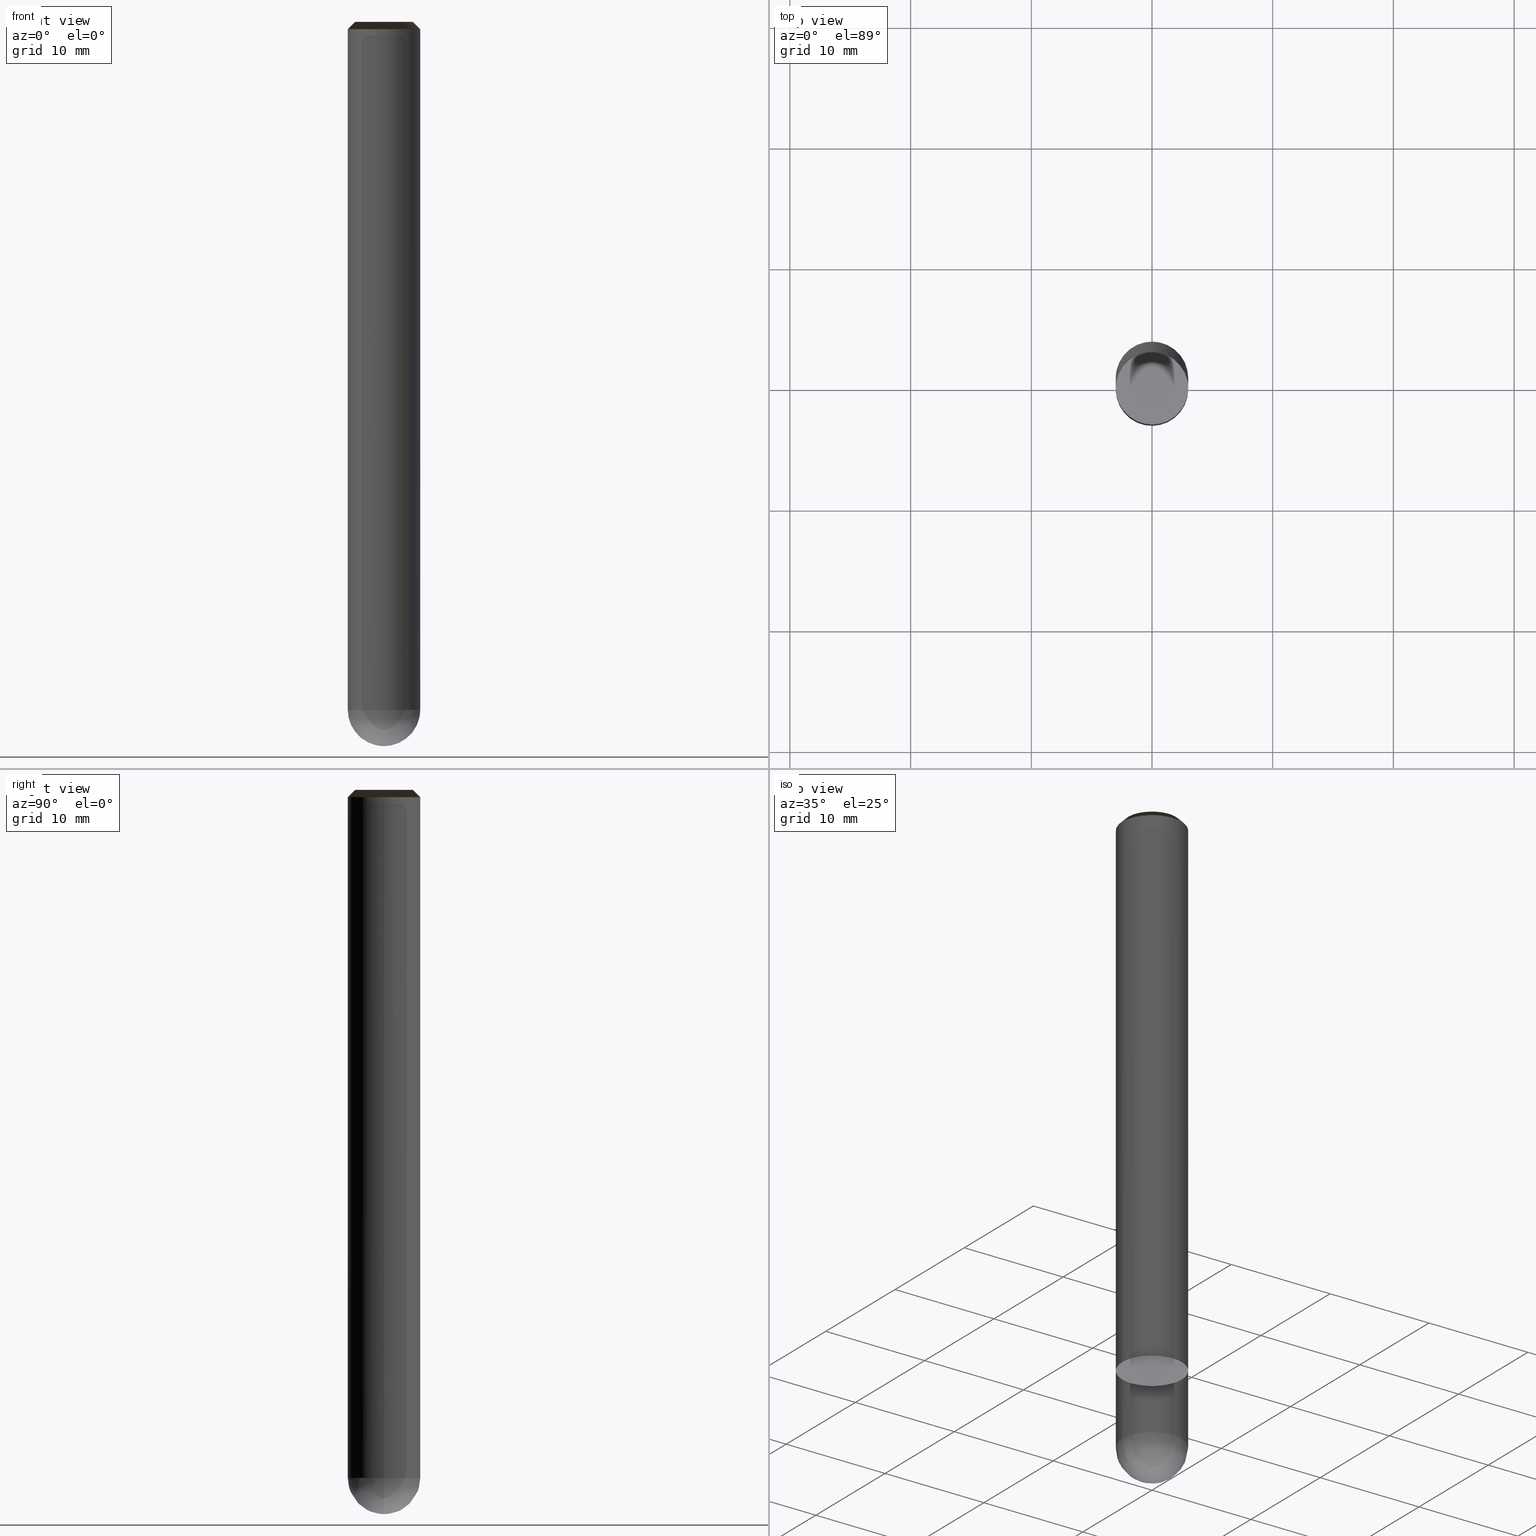
[diagram: canonical four-view strip — front | top / right | iso, engineering-drawing reading convention]
A machine part, canonical four-view strip (front | top / right | iso — engineering-drawing reading convention). The complete STEP part file that produces these views, byte-faithful:
ISO-10303-21;
HEADER;
/* Generated by ISBE GmbH (www.isbe.de) */
/* OPTION: using custom schema-name function */

FILE_DESCRIPTION(
/* description */ (''),
/* implementation_level */ '2;1');

FILE_NAME(
/*name*/ 'SHBS-2060-060-STH',
/*time_stamp*/'2023-9-14T8:40:55',
/*author*/ ('ISBE GmbH'),
/*organization*/ ('ISBE GmbH'),
/*preprocessor_version*/ 'STEP IO v1.0',
/*originating_system*/ '',
/*authorisation*/ '');

FILE_SCHEMA (('AUTOMOTIVE_DESIGN'));
ENDSEC;

DATA;
#10=SHAPE_DEFINITION_REPRESENTATION(#11,#57);
#11=PRODUCT_DEFINITION_SHAPE('Document','',#13);
#12=PRODUCT_DEFINITION_CONTEXT('3D Mechanical Parts',#17,'design');
#13=PRODUCT_DEFINITION('A','First version',#14,#12);
#14=PRODUCT_DEFINITION_FORMATION_WITH_SPECIFIED_SOURCE('A','First version',#19,.MADE.);
#15=PRODUCT_RELATED_PRODUCT_CATEGORY('tool','tool',(#19));
#16=APPLICATION_PROTOCOL_DEFINITION('Draft International Standard', 'automotive_design',1999,#17);
#17=APPLICATION_CONTEXT('data for automotive mechanical design processes');
#18=PRODUCT_CONTEXT('3D Mechanical Parts',#17,'mechanical');
#19=PRODUCT('Document','Document','ISBE converted to STEP',(#18));
#20=(
LENGTH_UNIT()
NAMED_UNIT(*)
SI_UNIT(.MILLI.,.METRE.)
);
#21=(
NAMED_UNIT(*)
PLANE_ANGLE_UNIT()
SI_UNIT($,.RADIAN.)
);
#22=DIMENSIONAL_EXPONENTS(0.,0.,0.,0.,0.,0.,0.);
#23=PLANE_ANGLE_MEASURE_WITH_UNIT(PLANE_ANGLE_MEASURE(0.01745329252),#21);
#24=(
CONVERSION_BASED_UNIT('DEGREES',#23)
NAMED_UNIT(#22)
PLANE_ANGLE_UNIT()
);
#25=(
NAMED_UNIT(*)
SI_UNIT($,.STERADIAN.)
SOLID_ANGLE_UNIT()
);
#26=UNCERTAINTY_MEASURE_WITH_UNIT(LENGTH_MEASURE(0.001),#20, 'DISTANCE_ACCURACY_VALUE', 'Maximum model space distance between geometric entities at asserted connectivities');
#27=(
GEOMETRIC_REPRESENTATION_CONTEXT(3)
GLOBAL_UNCERTAINTY_ASSIGNED_CONTEXT((#26))
GLOBAL_UNIT_ASSIGNED_CONTEXT((#25,#24,#20))
REPRESENTATION_CONTEXT('ID1','3D')
);
#28=CARTESIAN_POINT('',(0.0,0.0,0.0));
#29=DIRECTION('',(1.0,0.0,0.0));
#30=DIRECTION('',(0.0,0.0,1.0));
#31=AXIS2_PLACEMENT_3D('',#28,#30,#29);
#32=CARTESIAN_POINT('',(0.0,0.0,0.0));
#33=DIRECTION('',(1.0,0.0,0.0));
#34=DIRECTION('',(0.0,0.0,1.0));
#35=AXIS2_PLACEMENT_3D('',#32,#34,#33);
#36=CARTESIAN_POINT('',(0.0,0.0,0.0));
#37=DIRECTION('',(1.0,0.0,0.0));
#38=DIRECTION('',(0.0,0.0,1.0));
#39=AXIS2_PLACEMENT_3D('',#36,#38,#37);
#40=CARTESIAN_POINT('',(0.0,0.0,0.0));
#41=DIRECTION('',(0.0,0.0,1.0));
#42=DIRECTION('',(1.0,0.0,0.0));
#43=AXIS2_PLACEMENT_3D('MCS',#40,#42,#41);
#44=CARTESIAN_POINT('',(0.0,0.0,49.999));
#45=DIRECTION('',(0.0,0.0,1.0));
#46=DIRECTION('',(1.0,0.0,0.0));
#47=AXIS2_PLACEMENT_3D('PCS',#44,#46,#45);
#48=CARTESIAN_POINT('',(0.0,0.0,-10.001));
#49=DIRECTION('',(0.0,0.0,1.0));
#50=DIRECTION('',(1.0,0.0,0.0));
#51=AXIS2_PLACEMENT_3D('CIP',#48,#50,#49);
#52=CARTESIAN_POINT('',(0.0,-3.0,-10.001));
#53=DIRECTION('',(0.0,0.0,1.0));
#54=DIRECTION('',(1.0,0.0,0.0));
#55=AXIS2_PLACEMENT_3D('CRP',#52,#54,#53);
#57=SHAPE_REPRESENTATION('Document',(#31,#35,#39,#43,#47,#51,#55),#27);
#58=DIRECTION('',(1.0,0.0,0.0));
#59=DIRECTION('',(0.0,0.0,1.0));
#60=CARTESIAN_POINT('',(-0.029998472069,-0.000302776321,-10.000519102798));
#61=CARTESIAN_POINT('',(-0.029057762313,-0.09165903705,-9.999458648602));
#62=CARTESIAN_POINT('',(-0.027874373817,-0.190178750337,-9.994836178251));
#63=CARTESIAN_POINT('',(-0.026368263177,-0.286859736173,-9.987137338848));
#64=CARTESIAN_POINT('',(-0.024359455378,-0.382857327549,-9.97637004147));
#65=CARTESIAN_POINT('',(-0.021680766138,-0.478308564456,-9.962545350243));
#66=CARTESIAN_POINT('',(-0.018170106177,-0.573187961479,-9.945677470973));
#67=CARTESIAN_POINT('',(-0.013670189157,-0.667422819783,-9.925783736545));
#68=CARTESIAN_POINT('',(-0.008029102456,-0.760921392102,-9.902884589117));
#69=CARTESIAN_POINT('',(-0.001101056359,-0.853582049754,-9.87700355911));
#70=CARTESIAN_POINT('',(0.007252824892,-0.945296830697,-9.848167241032));
#71=CARTESIAN_POINT('',(0.017163709323,-1.035952988519,-9.816405266149));
#72=CARTESIAN_POINT('',(0.028754275985,-1.125433745794,-9.781750272038));
#73=CARTESIAN_POINT('',(0.042137954388,-1.213618715505,-9.744237869047));
#74=CARTESIAN_POINT('',(0.057418190415,-1.300384190555,-9.703906603707));
#75=CARTESIAN_POINT('',(0.074687743744,-1.385603395776,-9.660797919119));
#76=CARTESIAN_POINT('',(0.094028021615,-1.469146750244,-9.61495611237));
#77=CARTESIAN_POINT('',(0.115508453778,-1.550882165421,-9.566428289016));
#78=CARTESIAN_POINT('',(0.139185913541,-1.630675393026,-9.515264314676));
#79=CARTESIAN_POINT('',(0.165104189929,-1.708390430075,-9.461516763791));
#80=CARTESIAN_POINT('',(0.193293515993,-1.78388998451,-9.405240865604));
#81=CARTESIAN_POINT('',(0.223770158332,-1.857036002192,-9.346494447404));
#82=CARTESIAN_POINT('',(0.256536072792,-1.927690254088,-9.285337875107));
#83=CARTESIAN_POINT('',(0.291578631183,-1.995714980966,-9.221833991226));
#84=CARTESIAN_POINT('',(0.328870423631,-2.060973591628,-9.156048050293));
#85=CARTESIAN_POINT('',(0.368369140851,-2.123331409635,-9.08804765181));
#86=CARTESIAN_POINT('',(0.410017540258,-2.182656462494,-9.017902670784));
#87=CARTESIAN_POINT('',(0.453743499332,-2.238820306426,-8.945685185923));
#88=CARTESIAN_POINT('',(0.499460159084,-2.291698879061,-8.871469405576));
#89=CARTESIAN_POINT('',(0.547066159827,-2.341173371754,-8.795331591474));
#90=CARTESIAN_POINT('',(0.596445970713,-2.387131112636,-8.717349980367));
#91=CARTESIAN_POINT('',(0.647470313722,-2.429466451075,-8.637604703632));
#92=CARTESIAN_POINT('',(0.699996681906,-2.468081633862,-8.556177704932));
#93=CARTESIAN_POINT('',(0.753869950797,-2.502887663217,-8.473152656012));
#94=CARTESIAN_POINT('',(0.808923080951,-2.533805126614,-8.388614870723));
#95=CARTESIAN_POINT('',(0.864977908611,-2.560764988432,-8.302651217353));
#96=CARTESIAN_POINT('',(0.921846020504,-2.583709333624,-8.215350029367));
#97=CARTESIAN_POINT('',(0.979329707838,-2.602592053854,-8.126801014638));
#98=CARTESIAN_POINT('',(1.037222993558,-2.617379467004,-8.037095163264));
#99=CARTESIAN_POINT('',(1.095312726072,-2.628050861477,-7.946324654071));
#100=CARTESIAN_POINT('',(1.153379731763,-2.634598957407,-7.854582759893));
#101=CARTESIAN_POINT('',(1.211200017813,-2.637030277681,-7.761963751729));
#102=CARTESIAN_POINT('',(1.268546016174,-2.635365422557,-7.668562801869));
#103=CARTESIAN_POINT('',(1.325187858919,-2.629639242678,-7.574475886104));
#104=CARTESIAN_POINT('',(1.380894674677,-2.619900906332,-7.4797996851));
#105=CARTESIAN_POINT('',(1.435435895526,-2.606213857977,-7.384631485054));
#106=CARTESIAN_POINT('',(1.488582563428,-2.588655666233,-7.289069077723));
#107=CARTESIAN_POINT('',(1.540108625206,-2.567317760771,-7.193210659942));
#108=CARTESIAN_POINT('',(1.589792205091,-2.542305058802,-7.097154732715));
#109=CARTESIAN_POINT('',(1.63741684402,-2.513735483085,-7.001));
#110=CARTESIAN_POINT('',(1.675705074257,-2.488375474905,-6.921454545455));
#111=CARTESIAN_POINT('',(1.713600608859,-2.462432324617,-6.841909090909));
#112=CARTESIAN_POINT('',(1.751094567138,-2.435912111908,-6.762363636364));
#113=CARTESIAN_POINT('',(1.788178162518,-2.408821051696,-6.682818181818));
#114=CARTESIAN_POINT('',(1.824842704585,-2.381165492678,-6.603272727273));
#115=CARTESIAN_POINT('',(1.861079601134,-2.352951915838,-6.523727272727));
#116=CARTESIAN_POINT('',(1.896880360173,-2.324186932927,-6.444181818182));
#117=CARTESIAN_POINT('',(1.93223659192,-2.294877284921,-6.364636363636));
#118=CARTESIAN_POINT('',(1.967140010765,-2.265029840432,-6.285090909091));
#119=CARTESIAN_POINT('',(2.001582437214,-2.234651594105,-6.205545454545));
#120=CARTESIAN_POINT('',(2.035555799805,-2.203749664976,-6.126));
#121=CARTESIAN_POINT('',(2.069052136998,-2.172331294804,-6.046454545455));
#122=CARTESIAN_POINT('',(2.102063599044,-2.140403846375,-5.966909090909));
#123=CARTESIAN_POINT('',(2.134582449821,-2.107974801774,-5.887363636364));
#124=CARTESIAN_POINT('',(2.166601068652,-2.075051760636,-5.807818181818));
#125=CARTESIAN_POINT('',(2.198111952083,-2.041642438359,-5.728272727273));
#126=CARTESIAN_POINT('',(2.22910771565,-2.007754664302,-5.648727272727));
#127=CARTESIAN_POINT('',(2.259581095604,-1.973396379947,-5.569181818182));
#128=CARTESIAN_POINT('',(2.289524950614,-1.938575637038,-5.489636363636));
#129=CARTESIAN_POINT('',(2.318932263442,-1.903300595694,-5.410090909091));
#130=CARTESIAN_POINT('',(2.347796142587,-1.867579522498,-5.330545454545));
#131=CARTESIAN_POINT('',(2.376109823901,-1.831420788558,-5.251));
#132=CARTESIAN_POINT('',(2.403866672169,-1.794832867549,-5.171454545455));
#133=CARTESIAN_POINT('',(2.431060182673,-1.757824333721,-5.091909090909));
#134=CARTESIAN_POINT('',(2.457683982708,-1.720403859895,-5.012363636364));
#135=CARTESIAN_POINT('',(2.483731833078,-1.682580215429,-4.932818181818));
#136=CARTESIAN_POINT('',(2.509197629562,-1.644362264162,-4.853272727273));
#137=CARTESIAN_POINT('',(2.534075404339,-1.605758962337,-4.773727272727));
#138=CARTESIAN_POINT('',(2.558359327388,-1.566779356504,-4.694181818182));
#139=CARTESIAN_POINT('',(2.582043707858,-1.527432581396,-4.614636363636));
#140=CARTESIAN_POINT('',(2.605122995397,-1.487727857794,-4.535090909091));
#141=CARTESIAN_POINT('',(2.627591781453,-1.44767449036,-4.455545454545));
#142=CARTESIAN_POINT('',(2.649444800546,-1.407281865463,-4.376));
#143=CARTESIAN_POINT('',(2.670676931497,-1.366559448971,-4.296454545455));
#144=CARTESIAN_POINT('',(2.691283198629,-1.325516784042,-4.216909090909));
#145=CARTESIAN_POINT('',(2.711258772937,-1.284163488881,-4.137363636364));
#146=CARTESIAN_POINT('',(2.730598973213,-1.242509254488,-4.057818181818));
#147=CARTESIAN_POINT('',(2.74929926715,-1.200563842387,-3.978272727273));
#148=CARTESIAN_POINT('',(2.767355272399,-1.15833708234,-3.898727272727));
#149=CARTESIAN_POINT('',(2.784762757598,-1.115838870041,-3.819181818182));
#150=CARTESIAN_POINT('',(2.801517643364,-1.073079164796,-3.739636363636));
#151=CARTESIAN_POINT('',(2.817616003248,-1.030067987195,-3.660090909091));
#152=CARTESIAN_POINT('',(2.833054064654,-0.986815416755,-3.580545454545));
#153=CARTESIAN_POINT('',(2.847828209728,-0.943331589567,-3.501));
#154=CARTESIAN_POINT('',(2.861934976201,-0.899626695913,-3.421454545455));
#155=CARTESIAN_POINT('',(2.8753710582,-0.855710977883,-3.341909090909));
#156=CARTESIAN_POINT('',(2.888133307026,-0.811594726971,-3.262363636364));
#157=CARTESIAN_POINT('',(2.900218731892,-0.767288281667,-3.182818181818));
#158=CARTESIAN_POINT('',(2.91162450062,-0.722802025033,-3.103272727273));
#159=CARTESIAN_POINT('',(2.922347940307,-0.678146382267,-3.023727272727));
#160=CARTESIAN_POINT('',(2.932386537954,-0.633331818262,-2.944181818182));
#161=CARTESIAN_POINT('',(2.941737941051,-0.588368835157,-2.864636363636));
#162=CARTESIAN_POINT('',(2.950399958127,-0.543267969868,-2.785090909091));
#163=CARTESIAN_POINT('',(2.95837055927,-0.498039791627,-2.705545454545));
#164=CARTESIAN_POINT('',(2.965647876598,-0.452694899499,-2.626));
#165=CARTESIAN_POINT('',(2.972230204695,-0.407243919901,-2.546454545455));
#166=CARTESIAN_POINT('',(2.978116001018,-0.361697504111,-2.466909090909));
#167=CARTESIAN_POINT('',(2.98330388625,-0.316066325774,-2.387363636364));
#168=CARTESIAN_POINT('',(2.987792644627,-0.270361078397,-2.307818181818));
#169=CARTESIAN_POINT('',(2.991581224226,-0.224592472844,-2.228272727273));
#170=CARTESIAN_POINT('',(2.994668737206,-0.178771234829,-2.148727272727));
#171=CARTESIAN_POINT('',(2.997054460018,-0.132908102399,-2.069181818182));
#172=CARTESIAN_POINT('',(2.998737833578,-0.08701382342,-1.989636363636));
#173=CARTESIAN_POINT('',(2.999718463393,-0.041099153054,-1.910090909091));
#174=CARTESIAN_POINT('',(2.999996119654,0.004825148755,-1.830545454545));
#175=CARTESIAN_POINT('',(2.999570737295,0.050748319807,-1.751));
#176=CARTESIAN_POINT('',(2.998442416002,0.096659598167,-1.671454545455));
#177=CARTESIAN_POINT('',(2.996611420194,0.142548224688,-1.591909090909));
#178=CARTESIAN_POINT('',(2.994078178958,0.188403445529,-1.512363636364));
#179=CARTESIAN_POINT('',(2.99084328595,0.234214514681,-1.432818181818));
#180=CARTESIAN_POINT('',(2.986907499256,0.279970696479,-1.353272727273));
#181=CARTESIAN_POINT('',(2.982271741214,0.325661268121,-1.273727272727));
#182=CARTESIAN_POINT('',(2.976937098198,0.371275522182,-1.194181818182));
#183=CARTESIAN_POINT('',(2.970904820363,0.41680276912,-1.114636363636));
#184=CARTESIAN_POINT('',(2.964176321351,0.462232339783,-1.035090909091));
#185=CARTESIAN_POINT('',(2.956753177964,0.507553587911,-0.955545454545));
#186=CARTESIAN_POINT('',(2.948637129788,0.552755892627,-0.876));
#187=CARTESIAN_POINT('',(2.939830078792,0.597828660928,-0.796454545455));
#188=CARTESIAN_POINT('',(2.930334088878,0.64276133017,-0.716909090909));
#189=CARTESIAN_POINT('',(2.920151385396,0.687543370537,-0.637363636364));
#190=CARTESIAN_POINT('',(2.909284354629,0.732164287514,-0.557818181818));
#191=CARTESIAN_POINT('',(2.897735543227,0.776613624346,-0.478272727273));
#192=CARTESIAN_POINT('',(2.885507657613,0.820880964486,-0.398727272727));
#193=CARTESIAN_POINT('',(2.872603563351,0.864955934036,-0.319181818182));
#194=CARTESIAN_POINT('',(2.859026284469,0.908828204182,-0.239636363636));
#195=CARTESIAN_POINT('',(2.844779002755,0.952487493611,-0.160090909091));
#196=CARTESIAN_POINT('',(2.82986505701,0.995923570919,-0.080545454545));
#197=CARTESIAN_POINT('',(2.814287942266,1.039126257014,-0.001));
#198=CARTESIAN_POINT('',(0.029998472069,0.000302776321,-10.000519102798));
#199=CARTESIAN_POINT('',(0.029057762313,0.09165903705,-9.999458648602));
#200=CARTESIAN_POINT('',(0.027874373817,0.190178750337,-9.994836178251));
#201=CARTESIAN_POINT('',(0.026368263177,0.286859736173,-9.987137338848));
#202=CARTESIAN_POINT('',(0.024359455378,0.382857327549,-9.97637004147));
#203=CARTESIAN_POINT('',(0.021680766138,0.478308564456,-9.962545350243));
#204=CARTESIAN_POINT('',(0.018170106177,0.573187961479,-9.945677470973));
#205=CARTESIAN_POINT('',(0.013670189157,0.667422819783,-9.925783736545));
#206=CARTESIAN_POINT('',(0.008029102456,0.760921392102,-9.902884589117));
#207=CARTESIAN_POINT('',(0.001101056359,0.853582049754,-9.87700355911));
#208=CARTESIAN_POINT('',(-0.007252824892,0.945296830697,-9.848167241032));
#209=CARTESIAN_POINT('',(-0.017163709323,1.035952988519,-9.816405266149));
#210=CARTESIAN_POINT('',(-0.028754275985,1.125433745794,-9.781750272038));
#211=CARTESIAN_POINT('',(-0.042137954388,1.213618715505,-9.744237869047));
#212=CARTESIAN_POINT('',(-0.057418190415,1.300384190555,-9.703906603707));
#213=CARTESIAN_POINT('',(-0.074687743744,1.385603395776,-9.660797919119));
#214=CARTESIAN_POINT('',(-0.094028021615,1.469146750244,-9.61495611237));
#215=CARTESIAN_POINT('',(-0.115508453778,1.550882165421,-9.566428289016));
#216=CARTESIAN_POINT('',(-0.139185913541,1.630675393026,-9.515264314676));
#217=CARTESIAN_POINT('',(-0.165104189929,1.708390430075,-9.461516763791));
#218=CARTESIAN_POINT('',(-0.193293515993,1.78388998451,-9.405240865604));
#219=CARTESIAN_POINT('',(-0.223770158332,1.857036002192,-9.346494447404));
#220=CARTESIAN_POINT('',(-0.256536072792,1.927690254088,-9.285337875107));
#221=CARTESIAN_POINT('',(-0.291578631183,1.995714980966,-9.221833991226));
#222=CARTESIAN_POINT('',(-0.328870423631,2.060973591628,-9.156048050293));
#223=CARTESIAN_POINT('',(-0.368369140851,2.123331409635,-9.08804765181));
#224=CARTESIAN_POINT('',(-0.410017540258,2.182656462494,-9.017902670784));
#225=CARTESIAN_POINT('',(-0.453743499332,2.238820306426,-8.945685185923));
#226=CARTESIAN_POINT('',(-0.499460159084,2.291698879061,-8.871469405576));
#227=CARTESIAN_POINT('',(-0.547066159827,2.341173371754,-8.795331591474));
#228=CARTESIAN_POINT('',(-0.596445970713,2.387131112636,-8.717349980367));
#229=CARTESIAN_POINT('',(-0.647470313722,2.429466451075,-8.637604703632));
#230=CARTESIAN_POINT('',(-0.699996681906,2.468081633862,-8.556177704932));
#231=CARTESIAN_POINT('',(-0.753869950797,2.502887663217,-8.473152656012));
#232=CARTESIAN_POINT('',(-0.808923080951,2.533805126614,-8.388614870723));
#233=CARTESIAN_POINT('',(-0.86497790861,2.560764988432,-8.302651217353));
#234=CARTESIAN_POINT('',(-0.921846020504,2.583709333624,-8.215350029367));
#235=CARTESIAN_POINT('',(-0.979329707838,2.602592053854,-8.126801014638));
#236=CARTESIAN_POINT('',(-1.037222993558,2.617379467004,-8.037095163264));
#237=CARTESIAN_POINT('',(-1.095312726072,2.628050861477,-7.946324654071));
#238=CARTESIAN_POINT('',(-1.153379731763,2.634598957407,-7.854582759893));
#239=CARTESIAN_POINT('',(-1.211200017813,2.637030277681,-7.761963751729));
#240=CARTESIAN_POINT('',(-1.268546016174,2.635365422557,-7.668562801869));
#241=CARTESIAN_POINT('',(-1.325187858919,2.629639242678,-7.574475886104));
#242=CARTESIAN_POINT('',(-1.380894674677,2.619900906332,-7.4797996851));
#243=CARTESIAN_POINT('',(-1.435435895526,2.606213857977,-7.384631485054));
#244=CARTESIAN_POINT('',(-1.488582563428,2.588655666233,-7.289069077723));
#245=CARTESIAN_POINT('',(-1.540108625206,2.567317760771,-7.193210659942));
#246=CARTESIAN_POINT('',(-1.589792205091,2.542305058802,-7.097154732715));
#247=CARTESIAN_POINT('',(-1.63741684402,2.513735483085,-7.001));
#248=CARTESIAN_POINT('',(-1.675705074257,2.488375474905,-6.921454545455));
#249=CARTESIAN_POINT('',(-1.713600608859,2.462432324617,-6.841909090909));
#250=CARTESIAN_POINT('',(-1.751094567138,2.435912111908,-6.762363636364));
#251=CARTESIAN_POINT('',(-1.788178162518,2.408821051696,-6.682818181818));
#252=CARTESIAN_POINT('',(-1.824842704585,2.381165492678,-6.603272727273));
#253=CARTESIAN_POINT('',(-1.861079601134,2.352951915838,-6.523727272727));
#254=CARTESIAN_POINT('',(-1.896880360173,2.324186932928,-6.444181818182));
#255=CARTESIAN_POINT('',(-1.93223659192,2.294877284921,-6.364636363636));
#256=CARTESIAN_POINT('',(-1.967140010765,2.265029840432,-6.285090909091));
#257=CARTESIAN_POINT('',(-2.001582437214,2.234651594105,-6.205545454545));
#258=CARTESIAN_POINT('',(-2.035555799805,2.203749664976,-6.126));
#259=CARTESIAN_POINT('',(-2.069052136998,2.172331294804,-6.046454545455));
#260=CARTESIAN_POINT('',(-2.102063599044,2.140403846375,-5.966909090909));
#261=CARTESIAN_POINT('',(-2.134582449821,2.107974801774,-5.887363636364));
#262=CARTESIAN_POINT('',(-2.166601068652,2.075051760636,-5.807818181818));
#263=CARTESIAN_POINT('',(-2.198111952083,2.041642438359,-5.728272727273));
#264=CARTESIAN_POINT('',(-2.22910771565,2.007754664302,-5.648727272727));
#265=CARTESIAN_POINT('',(-2.259581095604,1.973396379947,-5.569181818182));
#266=CARTESIAN_POINT('',(-2.289524950614,1.938575637038,-5.489636363636));
#267=CARTESIAN_POINT('',(-2.318932263442,1.903300595694,-5.410090909091));
#268=CARTESIAN_POINT('',(-2.347796142587,1.867579522498,-5.330545454545));
#269=CARTESIAN_POINT('',(-2.376109823901,1.831420788558,-5.251));
#270=CARTESIAN_POINT('',(-2.403866672169,1.794832867549,-5.171454545455));
#271=CARTESIAN_POINT('',(-2.431060182673,1.757824333721,-5.091909090909));
#272=CARTESIAN_POINT('',(-2.457683982708,1.720403859895,-5.012363636364));
#273=CARTESIAN_POINT('',(-2.483731833078,1.682580215429,-4.932818181818));
#274=CARTESIAN_POINT('',(-2.509197629562,1.644362264162,-4.853272727273));
#275=CARTESIAN_POINT('',(-2.534075404339,1.605758962337,-4.773727272727));
#276=CARTESIAN_POINT('',(-2.558359327388,1.566779356504,-4.694181818182));
#277=CARTESIAN_POINT('',(-2.582043707858,1.527432581396,-4.614636363636));
#278=CARTESIAN_POINT('',(-2.605122995397,1.487727857794,-4.535090909091));
#279=CARTESIAN_POINT('',(-2.627591781453,1.44767449036,-4.455545454545));
#280=CARTESIAN_POINT('',(-2.649444800546,1.407281865463,-4.376));
#281=CARTESIAN_POINT('',(-2.670676931497,1.366559448971,-4.296454545455));
#282=CARTESIAN_POINT('',(-2.691283198629,1.325516784042,-4.216909090909));
#283=CARTESIAN_POINT('',(-2.711258772937,1.284163488881,-4.137363636364));
#284=CARTESIAN_POINT('',(-2.730598973213,1.242509254488,-4.057818181818));
#285=CARTESIAN_POINT('',(-2.74929926715,1.200563842387,-3.978272727273));
#286=CARTESIAN_POINT('',(-2.767355272399,1.15833708234,-3.898727272727));
#287=CARTESIAN_POINT('',(-2.784762757598,1.115838870041,-3.819181818182));
#288=CARTESIAN_POINT('',(-2.801517643364,1.073079164796,-3.739636363636));
#289=CARTESIAN_POINT('',(-2.817616003248,1.030067987195,-3.660090909091));
#290=CARTESIAN_POINT('',(-2.833054064654,0.986815416755,-3.580545454545));
#291=CARTESIAN_POINT('',(-2.847828209728,0.943331589567,-3.501));
#292=CARTESIAN_POINT('',(-2.861934976201,0.899626695913,-3.421454545455));
#293=CARTESIAN_POINT('',(-2.8753710582,0.855710977883,-3.341909090909));
#294=CARTESIAN_POINT('',(-2.888133307026,0.811594726971,-3.262363636364));
#295=CARTESIAN_POINT('',(-2.900218731892,0.767288281667,-3.182818181818));
#296=CARTESIAN_POINT('',(-2.91162450062,0.722802025033,-3.103272727273));
#297=CARTESIAN_POINT('',(-2.922347940307,0.678146382267,-3.023727272727));
#298=CARTESIAN_POINT('',(-2.932386537954,0.633331818262,-2.944181818182));
#299=CARTESIAN_POINT('',(-2.941737941051,0.588368835157,-2.864636363636));
#300=CARTESIAN_POINT('',(-2.950399958127,0.543267969868,-2.785090909091));
#301=CARTESIAN_POINT('',(-2.95837055927,0.498039791627,-2.705545454545));
#302=CARTESIAN_POINT('',(-2.965647876598,0.452694899499,-2.626));
#303=CARTESIAN_POINT('',(-2.972230204695,0.407243919901,-2.546454545455));
#304=CARTESIAN_POINT('',(-2.978116001018,0.361697504111,-2.466909090909));
#305=CARTESIAN_POINT('',(-2.98330388625,0.316066325774,-2.387363636364));
#306=CARTESIAN_POINT('',(-2.987792644627,0.270361078397,-2.307818181818));
#307=CARTESIAN_POINT('',(-2.991581224226,0.224592472844,-2.228272727273));
#308=CARTESIAN_POINT('',(-2.994668737206,0.178771234829,-2.148727272727));
#309=CARTESIAN_POINT('',(-2.997054460018,0.132908102399,-2.069181818182));
#310=CARTESIAN_POINT('',(-2.998737833578,0.08701382342,-1.989636363636));
#311=CARTESIAN_POINT('',(-2.999718463393,0.041099153054,-1.910090909091));
#312=CARTESIAN_POINT('',(-2.999996119654,-0.004825148755,-1.830545454545));
#313=CARTESIAN_POINT('',(-2.999570737295,-0.050748319807,-1.751));
#314=CARTESIAN_POINT('',(-2.998442416002,-0.096659598167,-1.671454545455));
#315=CARTESIAN_POINT('',(-2.996611420194,-0.142548224688,-1.591909090909));
#316=CARTESIAN_POINT('',(-2.994078178958,-0.188403445529,-1.512363636364));
#317=CARTESIAN_POINT('',(-2.99084328595,-0.234214514681,-1.432818181818));
#318=CARTESIAN_POINT('',(-2.986907499256,-0.279970696479,-1.353272727273));
#319=CARTESIAN_POINT('',(-2.982271741214,-0.325661268121,-1.273727272727));
#320=CARTESIAN_POINT('',(-2.976937098198,-0.371275522182,-1.194181818182));
#321=CARTESIAN_POINT('',(-2.970904820363,-0.41680276912,-1.114636363636));
#322=CARTESIAN_POINT('',(-2.964176321351,-0.462232339783,-1.035090909091));
#323=CARTESIAN_POINT('',(-2.956753177964,-0.507553587911,-0.955545454545));
#324=CARTESIAN_POINT('',(-2.948637129788,-0.552755892627,-0.876));
#325=CARTESIAN_POINT('',(-2.939830078792,-0.597828660928,-0.796454545455));
#326=CARTESIAN_POINT('',(-2.930334088878,-0.64276133017,-0.716909090909));
#327=CARTESIAN_POINT('',(-2.920151385396,-0.687543370537,-0.637363636364));
#328=CARTESIAN_POINT('',(-2.909284354629,-0.732164287514,-0.557818181818));
#329=CARTESIAN_POINT('',(-2.897735543227,-0.776613624346,-0.478272727273));
#330=CARTESIAN_POINT('',(-2.885507657613,-0.820880964486,-0.398727272727));
#331=CARTESIAN_POINT('',(-2.872603563351,-0.864955934036,-0.319181818182));
#332=CARTESIAN_POINT('',(-2.859026284469,-0.908828204182,-0.239636363636));
#333=CARTESIAN_POINT('',(-2.844779002755,-0.952487493611,-0.160090909091));
#334=CARTESIAN_POINT('',(-2.82986505701,-0.995923570919,-0.080545454545));
#335=CARTESIAN_POINT('',(-2.814287942266,-1.039126257014,-0.001));
#336=CARTESIAN_POINT('',(0.0,0.0,-10.001));
#337=CARTESIAN_POINT('',(3.0,0.0,-10.001));
#338=CARTESIAN_POINT('',(3.0,3.0,-10.001));
#339=CARTESIAN_POINT('',(0.0,3.0,-10.001));
#340=CARTESIAN_POINT('',(-3.0,3.0,-10.001));
#341=CARTESIAN_POINT('',(-3.0,0.0,-10.001));
#342=CARTESIAN_POINT('',(3.0,0.0,-7.001));
#343=CARTESIAN_POINT('',(3.0,3.0,-7.001));
#344=CARTESIAN_POINT('',(0.0,3.0,-7.001));
#345=CARTESIAN_POINT('',(-3.0,3.0,-7.001));
#346=CARTESIAN_POINT('',(-3.0,0.0,-7.001));
#347=CARTESIAN_POINT('',(3.0,0.0,-0.001));
#348=CARTESIAN_POINT('',(3.0,3.0,-0.001));
#349=CARTESIAN_POINT('',(0.0,3.0,-0.001));
#350=CARTESIAN_POINT('',(-3.0,3.0,-0.001));
#351=CARTESIAN_POINT('',(-3.0,0.0,-0.001));
#352=CARTESIAN_POINT('',(0.0,0.0,-0.001));
#353=CARTESIAN_POINT('',(-3.0,-3.0,-10.001));
#354=CARTESIAN_POINT('',(0.0,-3.0,-10.001));
#355=CARTESIAN_POINT('',(3.0,-3.0,-10.001));
#356=CARTESIAN_POINT('',(-3.0,-3.0,-7.001));
#357=CARTESIAN_POINT('',(0.0,-3.0,-7.001));
#358=CARTESIAN_POINT('',(3.0,-3.0,-7.001));
#359=CARTESIAN_POINT('',(-3.0,-3.0,-0.001));
#360=CARTESIAN_POINT('',(0.0,-3.0,-0.001));
#361=CARTESIAN_POINT('',(3.0,-3.0,-0.001));
#362=CARTESIAN_POINT('',(3.0,0.0,0.0));
#363=CARTESIAN_POINT('',(3.0,3.0,0.0));
#364=CARTESIAN_POINT('',(0.0,3.0,0.0));
#365=CARTESIAN_POINT('',(-3.0,3.0,0.0));
#366=CARTESIAN_POINT('',(-3.0,0.0,0.0));
#367=CARTESIAN_POINT('',(3.0,0.0,49.399));
#368=CARTESIAN_POINT('',(3.0,3.0,49.399));
#369=CARTESIAN_POINT('',(0.0,3.0,49.399));
#370=CARTESIAN_POINT('',(-3.0,3.0,49.399));
#371=CARTESIAN_POINT('',(-3.0,0.0,49.399));
#372=CARTESIAN_POINT('',(2.4,0.0,49.999));
#373=CARTESIAN_POINT('',(2.4,2.4,49.999));
#374=CARTESIAN_POINT('',(0.0,2.4,49.999));
#375=CARTESIAN_POINT('',(-2.4,2.4,49.999));
#376=CARTESIAN_POINT('',(-2.4,0.0,49.999));
#377=CARTESIAN_POINT('',(0.0,0.0,49.999));
#378=CARTESIAN_POINT('',(-3.0,-3.0,0.0));
#379=CARTESIAN_POINT('',(0.0,-3.0,0.0));
#380=CARTESIAN_POINT('',(3.0,-3.0,0.0));
#381=CARTESIAN_POINT('',(-3.0,-3.0,49.399));
#382=CARTESIAN_POINT('',(0.0,-3.0,49.399));
#383=CARTESIAN_POINT('',(3.0,-3.0,49.399));
#384=CARTESIAN_POINT('',(-2.4,-2.4,49.999));
#385=CARTESIAN_POINT('',(0.0,-2.4,49.999));
#386=CARTESIAN_POINT('',(2.4,-2.4,49.999));
#387=(
BOUNDED_CURVE()
B_SPLINE_CURVE(1,(#60,#61,#62,#63,#64,#65,#66,#67,#68,#69,#70,#71,#72,#73,#74,#75,#76,#77,#78,#79,#80,#81,#82,#83,#84,#85,#86,#87,#88,#89,#90,#91,#92,#93,#94,#95,#96,#97,#98,#99,#100,#101,#102,#103,#104,#105,#106,#107,#108,#109,#110,#111,#112,#113,#114,#115,#116,#117,#118,#119,#120,#121,#122,#123,#124,#125,#126,#127,#128,#129,#130,#131,#132,#133,#134,#135,#136,#137,#138,#139,#140,#141,#142,#143,#144,#145,#146,#147,#148,#149,#150,#151,#152,#153,#154,#155,#156,#157,#158,#159,#160,#161,#162,#163,#164,#165,#166,#167,#168,#169,#170,#171,#172,#173,#174,#175,#176,#177,#178,#179,#180,#181,#182,#183,#184,#185,#186,#187,#188,#189,#190,#191,#192,#193,#194,#195,#196,#197),.UNSPECIFIED.,.F.,.F.)
B_SPLINE_CURVE_WITH_KNOTS((2,1,1,1,1,1,1,1,1,1,1,1,1,1,1,1,1,1,1,1,1,1,1,1,1,1,1,1,1,1,1,1,1,1,1,1,1,1,1,1,1,1,1,1,1,1,1,1,1,1,1,1,1,1,1,1,1,1,1,1,1,1,1,1,1,1,1,1,1,1,1,1,1,1,1,1,1,1,1,1,1,1,1,1,1,1,1,1,1,1,1,1,1,1,1,1,1,1,1,1,1,1,1,1,1,1,1,1,1,1,1,1,1,1,1,1,1,1,1,1,1,1,1,1,1,1,1,1,1,1,1,1,1,1,1,1,1,2),
(0.0,0.00698437556,0.014524333021,0.021939194415,0.029325137533,0.036700680777,0.044072148176,0.051442532789,0.058813693309,0.066187091898,0.073564094985,0.080946112905,0.088334669664,0.095731437726,0.103138252668,0.110557114692,0.117990180539,0.125439747866,0.132908233427,0.140398146082,0.147912055544,0.155452557712,0.163022237457,0.170623629724,0.178259179821,0.185931203737,0.193641849346,0.201393059239,0.209186535925,0.217023710021,0.224905711958,0.232833347667,0.24080707855,0.248827005998,0.256892860567,0.265003995877,0.273159387193,0.281357634583,0.289596970482,0.297875271465,0.306190073953,0.314538593595,0.322917747993,0.331324182472,0.33975429856,0.348204284828,0.356670149774,0.365147756398,0.373632858134,0.382121135803,0.389142486532,0.396163837262,0.403185187991,0.410206538721,0.41722788945,0.42424924018,0.431270590909,0.438291941639,0.445313292368,0.452334643098,0.459355993828,0.466377344557,0.473398695287,0.480420046016,0.487441396746,0.494462747475,0.501484098205,0.508505448934,0.515526799664,0.522548150393,0.529569501123,0.536590851852,0.543612202582,0.550633553311,0.557654904041,0.56467625477,0.5716976055,0.578718956229,0.585740306959,0.592761657688,0.599783008418,0.606804359147,0.613825709877,0.620847060606,0.627868411336,0.634889762065,0.641911112795,0.648932463524,0.655953814254,0.662975164983,0.669996515713,0.677017866442,0.684039217172,0.691060567901,0.698081918631,0.70510326936,0.71212462009,0.719145970819,0.726167321549,0.733188672279,0.740210023008,0.747231373738,0.754252724467,0.761274075197,0.768295425926,0.775316776656,0.782338127385,0.789359478115,0.796380828844,0.803402179574,0.810423530303,0.817444881033,0.824466231762,0.831487582492,0.838508933221,0.845530283951,0.85255163468,0.85957298541,0.866594336139,0.873615686869,0.880637037598,0.887658388328,0.894679739057,0.901701089787,0.908722440516,0.915743791246,0.922765141975,0.929786492705,0.936807843434,0.943829194164,0.950850544893,0.957871895623,0.964893246352,0.971914597082,0.978935947811,0.985957298541,0.99297864927,1.0),.UNSPECIFIED.)
CURVE()
GEOMETRIC_REPRESENTATION_ITEM()
RATIONAL_B_SPLINE_CURVE((1.0,1.0,1.0,1.0,1.0,1.0,1.0,1.0,1.0,1.0,1.0,1.0,1.0,1.0,1.0,1.0,1.0,1.0,1.0,1.0,1.0,1.0,1.0,1.0,1.0,1.0,1.0,1.0,1.0,1.0,1.0,1.0,1.0,1.0,1.0,1.0,1.0,1.0,1.0,1.0,1.0,1.0,1.0,1.0,1.0,1.0,1.0,1.0,1.0,1.0,1.0,1.0,1.0,1.0,1.0,1.0,1.0,1.0,1.0,1.0,1.0,1.0,1.0,1.0,1.0,1.0,1.0,1.0,1.0,1.0,1.0,1.0,1.0,1.0,1.0,1.0,1.0,1.0,1.0,1.0,1.0,1.0,1.0,1.0,1.0,1.0,1.0,1.0,1.0,1.0,1.0,1.0,1.0,1.0,1.0,1.0,1.0,1.0,1.0,1.0,1.0,1.0,1.0,1.0,1.0,1.0,1.0,1.0,1.0,1.0,1.0,1.0,1.0,1.0,1.0,1.0,1.0,1.0,1.0,1.0,1.0,1.0,1.0,1.0,1.0,1.0,1.0,1.0,1.0,1.0,1.0,1.0,1.0,1.0,1.0,1.0,1.0,1.0))
REPRESENTATION_ITEM('')
);
#388=(
BOUNDED_CURVE()
B_SPLINE_CURVE(1,(#198,#199,#200,#201,#202,#203,#204,#205,#206,#207,#208,#209,#210,#211,#212,#213,#214,#215,#216,#217,#218,#219,#220,#221,#222,#223,#224,#225,#226,#227,#228,#229,#230,#231,#232,#233,#234,#235,#236,#237,#238,#239,#240,#241,#242,#243,#244,#245,#246,#247,#248,#249,#250,#251,#252,#253,#254,#255,#256,#257,#258,#259,#260,#261,#262,#263,#264,#265,#266,#267,#268,#269,#270,#271,#272,#273,#274,#275,#276,#277,#278,#279,#280,#281,#282,#283,#284,#285,#286,#287,#288,#289,#290,#291,#292,#293,#294,#295,#296,#297,#298,#299,#300,#301,#302,#303,#304,#305,#306,#307,#308,#309,#310,#311,#312,#313,#314,#315,#316,#317,#318,#319,#320,#321,#322,#323,#324,#325,#326,#327,#328,#329,#330,#331,#332,#333,#334,#335),.UNSPECIFIED.,.F.,.F.)
B_SPLINE_CURVE_WITH_KNOTS((2,1,1,1,1,1,1,1,1,1,1,1,1,1,1,1,1,1,1,1,1,1,1,1,1,1,1,1,1,1,1,1,1,1,1,1,1,1,1,1,1,1,1,1,1,1,1,1,1,1,1,1,1,1,1,1,1,1,1,1,1,1,1,1,1,1,1,1,1,1,1,1,1,1,1,1,1,1,1,1,1,1,1,1,1,1,1,1,1,1,1,1,1,1,1,1,1,1,1,1,1,1,1,1,1,1,1,1,1,1,1,1,1,1,1,1,1,1,1,1,1,1,1,1,1,1,1,1,1,1,1,1,1,1,1,1,1,2),
(0.0,0.00698437556,0.014524333021,0.021939194415,0.029325137533,0.036700680777,0.044072148176,0.051442532789,0.058813693309,0.066187091898,0.073564094985,0.080946112905,0.088334669664,0.095731437726,0.103138252668,0.110557114692,0.117990180539,0.125439747866,0.132908233427,0.140398146082,0.147912055544,0.155452557712,0.163022237457,0.170623629724,0.178259179821,0.185931203737,0.193641849346,0.201393059239,0.209186535925,0.217023710021,0.224905711958,0.232833347667,0.24080707855,0.248827005998,0.256892860567,0.265003995877,0.273159387193,0.281357634583,0.289596970482,0.297875271465,0.306190073953,0.314538593595,0.322917747993,0.331324182472,0.33975429856,0.348204284828,0.356670149774,0.365147756398,0.373632858134,0.382121135803,0.389142486532,0.396163837262,0.403185187991,0.410206538721,0.41722788945,0.42424924018,0.431270590909,0.438291941639,0.445313292368,0.452334643098,0.459355993828,0.466377344557,0.473398695287,0.480420046016,0.487441396746,0.494462747475,0.501484098205,0.508505448934,0.515526799664,0.522548150393,0.529569501123,0.536590851852,0.543612202582,0.550633553311,0.557654904041,0.56467625477,0.5716976055,0.578718956229,0.585740306959,0.592761657688,0.599783008418,0.606804359147,0.613825709877,0.620847060606,0.627868411336,0.634889762065,0.641911112795,0.648932463524,0.655953814254,0.662975164983,0.669996515713,0.677017866442,0.684039217172,0.691060567901,0.698081918631,0.70510326936,0.71212462009,0.719145970819,0.726167321549,0.733188672279,0.740210023008,0.747231373738,0.754252724467,0.761274075197,0.768295425926,0.775316776656,0.782338127385,0.789359478115,0.796380828844,0.803402179574,0.810423530303,0.817444881033,0.824466231762,0.831487582492,0.838508933221,0.845530283951,0.85255163468,0.85957298541,0.866594336139,0.873615686869,0.880637037598,0.887658388328,0.894679739057,0.901701089787,0.908722440516,0.915743791246,0.922765141975,0.929786492705,0.936807843434,0.943829194164,0.950850544893,0.957871895623,0.964893246352,0.971914597082,0.978935947811,0.985957298541,0.99297864927,1.0),.UNSPECIFIED.)
CURVE()
GEOMETRIC_REPRESENTATION_ITEM()
RATIONAL_B_SPLINE_CURVE((1.0,1.0,1.0,1.0,1.0,1.0,1.0,1.0,1.0,1.0,1.0,1.0,1.0,1.0,1.0,1.0,1.0,1.0,1.0,1.0,1.0,1.0,1.0,1.0,1.0,1.0,1.0,1.0,1.0,1.0,1.0,1.0,1.0,1.0,1.0,1.0,1.0,1.0,1.0,1.0,1.0,1.0,1.0,1.0,1.0,1.0,1.0,1.0,1.0,1.0,1.0,1.0,1.0,1.0,1.0,1.0,1.0,1.0,1.0,1.0,1.0,1.0,1.0,1.0,1.0,1.0,1.0,1.0,1.0,1.0,1.0,1.0,1.0,1.0,1.0,1.0,1.0,1.0,1.0,1.0,1.0,1.0,1.0,1.0,1.0,1.0,1.0,1.0,1.0,1.0,1.0,1.0,1.0,1.0,1.0,1.0,1.0,1.0,1.0,1.0,1.0,1.0,1.0,1.0,1.0,1.0,1.0,1.0,1.0,1.0,1.0,1.0,1.0,1.0,1.0,1.0,1.0,1.0,1.0,1.0,1.0,1.0,1.0,1.0,1.0,1.0,1.0,1.0,1.0,1.0,1.0,1.0,1.0,1.0,1.0,1.0,1.0,1.0))
REPRESENTATION_ITEM('')
);
#389=SHAPE_REPRESENTATION_RELATIONSHIP('','',#57,#390);
#390=GEOMETRICALLY_BOUNDED_WIREFRAME_SHAPE_REPRESENTATION('Curves',(#391,#31),#27);
#391=GEOMETRIC_CURVE_SET('CurveSet',(#387,#388));
#392=(
BOUNDED_SURFACE()
B_SPLINE_SURFACE(2,2,(
(#336,#336,#336,#336,#336),
(#337,#338,#339,#340,#341),
(#342,#343,#344,#345,#346)
), .UNSPECIFIED.,.F.,.F.,.F.)
B_SPLINE_SURFACE_WITH_KNOTS((3,3),(3,2,3),(
0.0,1.0),(
0.0,0.5,1.0), .UNSPECIFIED.)
GEOMETRIC_REPRESENTATION_ITEM()
RATIONAL_B_SPLINE_SURFACE(((1.0,0.707106781187,1.0,0.707106781187,1.0),
(0.707106781187,0.5,0.707106781187,0.5,0.707106781187),
(1.0,0.707106781187,1.0,0.707106781187,1.0)
))
REPRESENTATION_ITEM('')
SURFACE()
);
#393=(
BOUNDED_CURVE()
B_SPLINE_CURVE(2,(#342,#343,#344,#345,#346),.UNSPECIFIED.,.F.,.F.)
B_SPLINE_CURVE_WITH_KNOTS((3,2,3),
(0.0,0.5,1.0),.UNSPECIFIED.)
CURVE()
GEOMETRIC_REPRESENTATION_ITEM()
RATIONAL_B_SPLINE_CURVE((1.0,0.707106781187,1.0,0.707106781187,1.0))
REPRESENTATION_ITEM('')
);
#394=(
BOUNDED_CURVE()
B_SPLINE_CURVE(2,(#346,#341,#336),.UNSPECIFIED.,.F.,.F.)
B_SPLINE_CURVE_WITH_KNOTS((3,3),
(0.0,1.0),.UNSPECIFIED.)
CURVE()
GEOMETRIC_REPRESENTATION_ITEM()
RATIONAL_B_SPLINE_CURVE((1.0,0.707106781187,1.0))
REPRESENTATION_ITEM('')
);
#395=(
BOUNDED_CURVE()
B_SPLINE_CURVE(2,(#336,#337,#342),.UNSPECIFIED.,.F.,.F.)
B_SPLINE_CURVE_WITH_KNOTS((3,3),
(0.0,1.0),.UNSPECIFIED.)
CURVE()
GEOMETRIC_REPRESENTATION_ITEM()
RATIONAL_B_SPLINE_CURVE((1.0,0.707106781187,1.0))
REPRESENTATION_ITEM('')
);
#396=VERTEX_POINT('',#336);
#397=VERTEX_POINT('',#342);
#398=VERTEX_POINT('',#346);
#399=EDGE_CURVE('',#397,#398,#393,.T.);
#400=EDGE_CURVE('',#398,#396,#394,.T.);
#401=EDGE_CURVE('',#396,#397,#395,.T.);
#402=ORIENTED_EDGE('',*,*,#399,.T.);
#403=ORIENTED_EDGE('',*,*,#400,.T.);
#404=ORIENTED_EDGE('',*,*,#401,.T.);
#405=EDGE_LOOP('',(#402,#403,#404));
#406=FACE_OUTER_BOUND('',#405,.T.);
#407=ADVANCED_FACE('',(#406),#392,.T.);
#408=(
BOUNDED_SURFACE()
B_SPLINE_SURFACE(1,2,(
(#342,#343,#344,#345,#346),
(#347,#348,#349,#350,#351)
), .UNSPECIFIED.,.F.,.F.,.F.)
B_SPLINE_SURFACE_WITH_KNOTS((2,2),(3,2,3),(
0.0,1.0),(
0.0,0.5,1.0), .UNSPECIFIED.)
GEOMETRIC_REPRESENTATION_ITEM()
RATIONAL_B_SPLINE_SURFACE(((1.0,0.707106781187,1.0,0.707106781187,1.0),
(1.0,0.707106781187,1.0,0.707106781187,1.0)
))
REPRESENTATION_ITEM('')
SURFACE()
);
#409=(
BOUNDED_CURVE()
B_SPLINE_CURVE(2,(#347,#348,#349,#350,#351),.UNSPECIFIED.,.F.,.F.)
B_SPLINE_CURVE_WITH_KNOTS((3,2,3),
(0.0,0.5,1.0),.UNSPECIFIED.)
CURVE()
GEOMETRIC_REPRESENTATION_ITEM()
RATIONAL_B_SPLINE_CURVE((1.0,0.707106781187,1.0,0.707106781187,1.0))
REPRESENTATION_ITEM('')
);
#410=(
BOUNDED_CURVE()
B_SPLINE_CURVE(1,(#351,#346),.UNSPECIFIED.,.F.,.F.)
B_SPLINE_CURVE_WITH_KNOTS((2,2),
(0.0,1.0),.UNSPECIFIED.)
CURVE()
GEOMETRIC_REPRESENTATION_ITEM()
RATIONAL_B_SPLINE_CURVE((1.0,1.0))
REPRESENTATION_ITEM('')
);
#411=(
BOUNDED_CURVE()
B_SPLINE_CURVE(2,(#346,#345,#344,#343,#342),.UNSPECIFIED.,.F.,.F.)
B_SPLINE_CURVE_WITH_KNOTS((3,2,3),
(0.0,0.5,1.0),.UNSPECIFIED.)
CURVE()
GEOMETRIC_REPRESENTATION_ITEM()
RATIONAL_B_SPLINE_CURVE((1.0,0.707106781187,1.0,0.707106781187,1.0))
REPRESENTATION_ITEM('')
);
#412=(
BOUNDED_CURVE()
B_SPLINE_CURVE(1,(#342,#347),.UNSPECIFIED.,.F.,.F.)
B_SPLINE_CURVE_WITH_KNOTS((2,2),
(0.0,1.0),.UNSPECIFIED.)
CURVE()
GEOMETRIC_REPRESENTATION_ITEM()
RATIONAL_B_SPLINE_CURVE((1.0,1.0))
REPRESENTATION_ITEM('')
);
#413=VERTEX_POINT('',#342);
#414=VERTEX_POINT('',#346);
#415=VERTEX_POINT('',#347);
#416=VERTEX_POINT('',#351);
#417=EDGE_CURVE('',#415,#416,#409,.T.);
#418=EDGE_CURVE('',#416,#414,#410,.T.);
#419=EDGE_CURVE('',#414,#413,#411,.T.);
#420=EDGE_CURVE('',#413,#415,#412,.T.);
#421=ORIENTED_EDGE('',*,*,#417,.T.);
#422=ORIENTED_EDGE('',*,*,#418,.T.);
#423=ORIENTED_EDGE('',*,*,#419,.T.);
#424=ORIENTED_EDGE('',*,*,#420,.T.);
#425=EDGE_LOOP('',(#421,#422,#423,#424));
#426=FACE_OUTER_BOUND('',#425,.T.);
#427=ADVANCED_FACE('',(#426),#408,.T.);
#428=(
BOUNDED_SURFACE()
B_SPLINE_SURFACE(1,2,(
(#347,#348,#349,#350,#351),
(#352,#352,#352,#352,#352)
), .UNSPECIFIED.,.F.,.F.,.F.)
B_SPLINE_SURFACE_WITH_KNOTS((2,2),(3,2,3),(
0.0,1.0),(
0.0,0.5,1.0), .UNSPECIFIED.)
GEOMETRIC_REPRESENTATION_ITEM()
RATIONAL_B_SPLINE_SURFACE(((1.0,0.707106781187,1.0,0.707106781187,1.0),
(1.0,0.707106781187,1.0,0.707106781187,1.0)
))
REPRESENTATION_ITEM('')
SURFACE()
);
#429=(
BOUNDED_CURVE()
B_SPLINE_CURVE(1,(#352,#347),.UNSPECIFIED.,.F.,.F.)
B_SPLINE_CURVE_WITH_KNOTS((2,2),
(0.0,1.0),.UNSPECIFIED.)
CURVE()
GEOMETRIC_REPRESENTATION_ITEM()
RATIONAL_B_SPLINE_CURVE((1.0,1.0))
REPRESENTATION_ITEM('')
);
#430=(
BOUNDED_CURVE()
B_SPLINE_CURVE(2,(#347,#348,#349,#350,#351),.UNSPECIFIED.,.F.,.F.)
B_SPLINE_CURVE_WITH_KNOTS((3,2,3),
(0.0,0.5,1.0),.UNSPECIFIED.)
CURVE()
GEOMETRIC_REPRESENTATION_ITEM()
RATIONAL_B_SPLINE_CURVE((1.0,0.707106781187,1.0,0.707106781187,1.0))
REPRESENTATION_ITEM('')
);
#431=(
BOUNDED_CURVE()
B_SPLINE_CURVE(1,(#351,#352),.UNSPECIFIED.,.F.,.F.)
B_SPLINE_CURVE_WITH_KNOTS((2,2),
(0.0,1.0),.UNSPECIFIED.)
CURVE()
GEOMETRIC_REPRESENTATION_ITEM()
RATIONAL_B_SPLINE_CURVE((1.0,1.0))
REPRESENTATION_ITEM('')
);
#432=VERTEX_POINT('',#347);
#433=VERTEX_POINT('',#351);
#434=VERTEX_POINT('',#352);
#435=EDGE_CURVE('',#434,#432,#429,.T.);
#436=EDGE_CURVE('',#432,#433,#430,.T.);
#437=EDGE_CURVE('',#433,#434,#431,.T.);
#438=ORIENTED_EDGE('',*,*,#435,.T.);
#439=ORIENTED_EDGE('',*,*,#436,.T.);
#440=ORIENTED_EDGE('',*,*,#437,.T.);
#441=EDGE_LOOP('',(#438,#439,#440));
#442=FACE_OUTER_BOUND('',#441,.T.);
#443=ADVANCED_FACE('',(#442),#428,.T.);
#444=(
BOUNDED_SURFACE()
B_SPLINE_SURFACE(2,2,(
(#336,#336,#336,#336,#336),
(#341,#353,#354,#355,#337),
(#346,#356,#357,#358,#342)
), .UNSPECIFIED.,.F.,.F.,.F.)
B_SPLINE_SURFACE_WITH_KNOTS((3,3),(3,2,3),(
0.0,1.0),(
0.0,0.5,1.0), .UNSPECIFIED.)
GEOMETRIC_REPRESENTATION_ITEM()
RATIONAL_B_SPLINE_SURFACE(((1.0,0.707106781187,1.0,0.707106781187,1.0),
(0.707106781187,0.5,0.707106781187,0.5,0.707106781187),
(1.0,0.707106781187,1.0,0.707106781187,1.0)
))
REPRESENTATION_ITEM('')
SURFACE()
);
#445=(
BOUNDED_CURVE()
B_SPLINE_CURVE(2,(#346,#341,#336),.UNSPECIFIED.,.F.,.F.)
B_SPLINE_CURVE_WITH_KNOTS((3,3),
(0.0,1.0),.UNSPECIFIED.)
CURVE()
GEOMETRIC_REPRESENTATION_ITEM()
RATIONAL_B_SPLINE_CURVE((1.0,0.707106781187,1.0))
REPRESENTATION_ITEM('')
);
#446=(
BOUNDED_CURVE()
B_SPLINE_CURVE(2,(#336,#337,#342),.UNSPECIFIED.,.F.,.F.)
B_SPLINE_CURVE_WITH_KNOTS((3,3),
(0.0,1.0),.UNSPECIFIED.)
CURVE()
GEOMETRIC_REPRESENTATION_ITEM()
RATIONAL_B_SPLINE_CURVE((1.0,0.707106781187,1.0))
REPRESENTATION_ITEM('')
);
#447=(
BOUNDED_CURVE()
B_SPLINE_CURVE(2,(#342,#358,#357,#356,#346),.UNSPECIFIED.,.F.,.F.)
B_SPLINE_CURVE_WITH_KNOTS((3,2,3),
(0.0,0.5,1.0),.UNSPECIFIED.)
CURVE()
GEOMETRIC_REPRESENTATION_ITEM()
RATIONAL_B_SPLINE_CURVE((1.0,0.707106781187,1.0,0.707106781187,1.0))
REPRESENTATION_ITEM('')
);
#448=VERTEX_POINT('',#336);
#449=VERTEX_POINT('',#342);
#450=VERTEX_POINT('',#346);
#451=EDGE_CURVE('',#450,#448,#445,.T.);
#452=EDGE_CURVE('',#448,#449,#446,.T.);
#453=EDGE_CURVE('',#449,#450,#447,.T.);
#454=ORIENTED_EDGE('',*,*,#451,.T.);
#455=ORIENTED_EDGE('',*,*,#452,.T.);
#456=ORIENTED_EDGE('',*,*,#453,.T.);
#457=EDGE_LOOP('',(#454,#455,#456));
#458=FACE_OUTER_BOUND('',#457,.T.);
#459=ADVANCED_FACE('',(#458),#444,.T.);
#460=(
BOUNDED_SURFACE()
B_SPLINE_SURFACE(1,2,(
(#346,#356,#357,#358,#342),
(#351,#359,#360,#361,#347)
), .UNSPECIFIED.,.F.,.F.,.F.)
B_SPLINE_SURFACE_WITH_KNOTS((2,2),(3,2,3),(
0.0,1.0),(
0.0,0.5,1.0), .UNSPECIFIED.)
GEOMETRIC_REPRESENTATION_ITEM()
RATIONAL_B_SPLINE_SURFACE(((1.0,0.707106781187,1.0,0.707106781187,1.0),
(1.0,0.707106781187,1.0,0.707106781187,1.0)
))
REPRESENTATION_ITEM('')
SURFACE()
);
#461=(
BOUNDED_CURVE()
B_SPLINE_CURVE(1,(#351,#346),.UNSPECIFIED.,.F.,.F.)
B_SPLINE_CURVE_WITH_KNOTS((2,2),
(0.0,1.0),.UNSPECIFIED.)
CURVE()
GEOMETRIC_REPRESENTATION_ITEM()
RATIONAL_B_SPLINE_CURVE((1.0,1.0))
REPRESENTATION_ITEM('')
);
#462=(
BOUNDED_CURVE()
B_SPLINE_CURVE(2,(#346,#356,#357,#358,#342),.UNSPECIFIED.,.F.,.F.)
B_SPLINE_CURVE_WITH_KNOTS((3,2,3),
(0.0,0.5,1.0),.UNSPECIFIED.)
CURVE()
GEOMETRIC_REPRESENTATION_ITEM()
RATIONAL_B_SPLINE_CURVE((1.0,0.707106781187,1.0,0.707106781187,1.0))
REPRESENTATION_ITEM('')
);
#463=(
BOUNDED_CURVE()
B_SPLINE_CURVE(1,(#342,#347),.UNSPECIFIED.,.F.,.F.)
B_SPLINE_CURVE_WITH_KNOTS((2,2),
(0.0,1.0),.UNSPECIFIED.)
CURVE()
GEOMETRIC_REPRESENTATION_ITEM()
RATIONAL_B_SPLINE_CURVE((1.0,1.0))
REPRESENTATION_ITEM('')
);
#464=(
BOUNDED_CURVE()
B_SPLINE_CURVE(2,(#347,#361,#360,#359,#351),.UNSPECIFIED.,.F.,.F.)
B_SPLINE_CURVE_WITH_KNOTS((3,2,3),
(0.0,0.5,1.0),.UNSPECIFIED.)
CURVE()
GEOMETRIC_REPRESENTATION_ITEM()
RATIONAL_B_SPLINE_CURVE((1.0,0.707106781187,1.0,0.707106781187,1.0))
REPRESENTATION_ITEM('')
);
#465=VERTEX_POINT('',#342);
#466=VERTEX_POINT('',#346);
#467=VERTEX_POINT('',#347);
#468=VERTEX_POINT('',#351);
#469=EDGE_CURVE('',#468,#466,#461,.T.);
#470=EDGE_CURVE('',#466,#465,#462,.T.);
#471=EDGE_CURVE('',#465,#467,#463,.T.);
#472=EDGE_CURVE('',#467,#468,#464,.T.);
#473=ORIENTED_EDGE('',*,*,#469,.T.);
#474=ORIENTED_EDGE('',*,*,#470,.T.);
#475=ORIENTED_EDGE('',*,*,#471,.T.);
#476=ORIENTED_EDGE('',*,*,#472,.T.);
#477=EDGE_LOOP('',(#473,#474,#475,#476));
#478=FACE_OUTER_BOUND('',#477,.T.);
#479=ADVANCED_FACE('',(#478),#460,.T.);
#480=(
BOUNDED_SURFACE()
B_SPLINE_SURFACE(1,2,(
(#351,#359,#360,#361,#347),
(#352,#352,#352,#352,#352)
), .UNSPECIFIED.,.F.,.F.,.F.)
B_SPLINE_SURFACE_WITH_KNOTS((2,2),(3,2,3),(
0.0,1.0),(
0.0,0.5,1.0), .UNSPECIFIED.)
GEOMETRIC_REPRESENTATION_ITEM()
RATIONAL_B_SPLINE_SURFACE(((1.0,0.707106781187,1.0,0.707106781187,1.0),
(1.0,0.707106781187,1.0,0.707106781187,1.0)
))
REPRESENTATION_ITEM('')
SURFACE()
);
#481=(
BOUNDED_CURVE()
B_SPLINE_CURVE(1,(#352,#347),.UNSPECIFIED.,.F.,.F.)
B_SPLINE_CURVE_WITH_KNOTS((2,2),
(0.0,1.0),.UNSPECIFIED.)
CURVE()
GEOMETRIC_REPRESENTATION_ITEM()
RATIONAL_B_SPLINE_CURVE((1.0,1.0))
REPRESENTATION_ITEM('')
);
#482=(
BOUNDED_CURVE()
B_SPLINE_CURVE(2,(#347,#361,#360,#359,#351),.UNSPECIFIED.,.F.,.F.)
B_SPLINE_CURVE_WITH_KNOTS((3,2,3),
(0.0,0.5,1.0),.UNSPECIFIED.)
CURVE()
GEOMETRIC_REPRESENTATION_ITEM()
RATIONAL_B_SPLINE_CURVE((1.0,0.707106781187,1.0,0.707106781187,1.0))
REPRESENTATION_ITEM('')
);
#483=(
BOUNDED_CURVE()
B_SPLINE_CURVE(1,(#351,#352),.UNSPECIFIED.,.F.,.F.)
B_SPLINE_CURVE_WITH_KNOTS((2,2),
(0.0,1.0),.UNSPECIFIED.)
CURVE()
GEOMETRIC_REPRESENTATION_ITEM()
RATIONAL_B_SPLINE_CURVE((1.0,1.0))
REPRESENTATION_ITEM('')
);
#484=VERTEX_POINT('',#347);
#485=VERTEX_POINT('',#351);
#486=VERTEX_POINT('',#352);
#487=EDGE_CURVE('',#486,#484,#481,.T.);
#488=EDGE_CURVE('',#484,#485,#482,.T.);
#489=EDGE_CURVE('',#485,#486,#483,.T.);
#490=ORIENTED_EDGE('',*,*,#487,.T.);
#491=ORIENTED_EDGE('',*,*,#488,.T.);
#492=ORIENTED_EDGE('',*,*,#489,.T.);
#493=EDGE_LOOP('',(#490,#491,#492));
#494=FACE_OUTER_BOUND('',#493,.T.);
#495=ADVANCED_FACE('',(#494),#480,.T.);
#496=CLOSED_SHELL('',(#407,#427,#443,#459,#479,#495));
#497=SHAPE_REPRESENTATION_RELATIONSHIP('','',#57,#498);
#498=ADVANCED_BREP_SHAPE_REPRESENTATION('Solid0',(#499,#31),#27);
#499=MANIFOLD_SOLID_BREP('brep',#496);
#500=(
BOUNDED_SURFACE()
B_SPLINE_SURFACE(1,2,(
(#352,#352,#352,#352,#352),
(#347,#348,#349,#350,#351)
), .UNSPECIFIED.,.F.,.F.,.F.)
B_SPLINE_SURFACE_WITH_KNOTS((2,2),(3,2,3),(
0.0,1.0),(
0.0,0.5,1.0), .UNSPECIFIED.)
GEOMETRIC_REPRESENTATION_ITEM()
RATIONAL_B_SPLINE_SURFACE(((1.0,0.707106781187,1.0,0.707106781187,1.0),
(1.0,0.707106781187,1.0,0.707106781187,1.0)
))
REPRESENTATION_ITEM('')
SURFACE()
);
#501=(
BOUNDED_CURVE()
B_SPLINE_CURVE(2,(#347,#348,#349,#350,#351),.UNSPECIFIED.,.F.,.F.)
B_SPLINE_CURVE_WITH_KNOTS((3,2,3),
(0.0,0.5,1.0),.UNSPECIFIED.)
CURVE()
GEOMETRIC_REPRESENTATION_ITEM()
RATIONAL_B_SPLINE_CURVE((1.0,0.707106781187,1.0,0.707106781187,1.0))
REPRESENTATION_ITEM('')
);
#502=(
BOUNDED_CURVE()
B_SPLINE_CURVE(1,(#351,#352),.UNSPECIFIED.,.F.,.F.)
B_SPLINE_CURVE_WITH_KNOTS((2,2),
(0.0,1.0),.UNSPECIFIED.)
CURVE()
GEOMETRIC_REPRESENTATION_ITEM()
RATIONAL_B_SPLINE_CURVE((1.0,1.0))
REPRESENTATION_ITEM('')
);
#503=(
BOUNDED_CURVE()
B_SPLINE_CURVE(1,(#352,#347),.UNSPECIFIED.,.F.,.F.)
B_SPLINE_CURVE_WITH_KNOTS((2,2),
(0.0,1.0),.UNSPECIFIED.)
CURVE()
GEOMETRIC_REPRESENTATION_ITEM()
RATIONAL_B_SPLINE_CURVE((1.0,1.0))
REPRESENTATION_ITEM('')
);
#504=VERTEX_POINT('',#347);
#505=VERTEX_POINT('',#351);
#506=VERTEX_POINT('',#352);
#507=EDGE_CURVE('',#504,#505,#501,.T.);
#508=EDGE_CURVE('',#505,#506,#502,.T.);
#509=EDGE_CURVE('',#506,#504,#503,.T.);
#510=ORIENTED_EDGE('',*,*,#507,.T.);
#511=ORIENTED_EDGE('',*,*,#508,.T.);
#512=ORIENTED_EDGE('',*,*,#509,.T.);
#513=EDGE_LOOP('',(#510,#511,#512));
#514=FACE_OUTER_BOUND('',#513,.T.);
#515=ADVANCED_FACE('',(#514),#500,.T.);
#516=(
BOUNDED_SURFACE()
B_SPLINE_SURFACE(1,2,(
(#347,#348,#349,#350,#351),
(#362,#363,#364,#365,#366)
), .UNSPECIFIED.,.F.,.F.,.F.)
B_SPLINE_SURFACE_WITH_KNOTS((2,2),(3,2,3),(
0.0,1.0),(
0.0,0.5,1.0), .UNSPECIFIED.)
GEOMETRIC_REPRESENTATION_ITEM()
RATIONAL_B_SPLINE_SURFACE(((1.0,0.707106781187,1.0,0.707106781187,1.0),
(1.0,0.707106781187,1.0,0.707106781187,1.0)
))
REPRESENTATION_ITEM('')
SURFACE()
);
#517=(
BOUNDED_CURVE()
B_SPLINE_CURVE(2,(#362,#363,#364,#365,#366),.UNSPECIFIED.,.F.,.F.)
B_SPLINE_CURVE_WITH_KNOTS((3,2,3),
(0.0,0.5,1.0),.UNSPECIFIED.)
CURVE()
GEOMETRIC_REPRESENTATION_ITEM()
RATIONAL_B_SPLINE_CURVE((1.0,0.707106781187,1.0,0.707106781187,1.0))
REPRESENTATION_ITEM('')
);
#518=(
BOUNDED_CURVE()
B_SPLINE_CURVE(1,(#366,#351),.UNSPECIFIED.,.F.,.F.)
B_SPLINE_CURVE_WITH_KNOTS((2,2),
(0.0,1.0),.UNSPECIFIED.)
CURVE()
GEOMETRIC_REPRESENTATION_ITEM()
RATIONAL_B_SPLINE_CURVE((1.0,1.0))
REPRESENTATION_ITEM('')
);
#519=(
BOUNDED_CURVE()
B_SPLINE_CURVE(2,(#351,#350,#349,#348,#347),.UNSPECIFIED.,.F.,.F.)
B_SPLINE_CURVE_WITH_KNOTS((3,2,3),
(0.0,0.5,1.0),.UNSPECIFIED.)
CURVE()
GEOMETRIC_REPRESENTATION_ITEM()
RATIONAL_B_SPLINE_CURVE((1.0,0.707106781187,1.0,0.707106781187,1.0))
REPRESENTATION_ITEM('')
);
#520=(
BOUNDED_CURVE()
B_SPLINE_CURVE(1,(#347,#362),.UNSPECIFIED.,.F.,.F.)
B_SPLINE_CURVE_WITH_KNOTS((2,2),
(0.0,1.0),.UNSPECIFIED.)
CURVE()
GEOMETRIC_REPRESENTATION_ITEM()
RATIONAL_B_SPLINE_CURVE((1.0,1.0))
REPRESENTATION_ITEM('')
);
#521=VERTEX_POINT('',#347);
#522=VERTEX_POINT('',#351);
#523=VERTEX_POINT('',#362);
#524=VERTEX_POINT('',#366);
#525=EDGE_CURVE('',#523,#524,#517,.T.);
#526=EDGE_CURVE('',#524,#522,#518,.T.);
#527=EDGE_CURVE('',#522,#521,#519,.T.);
#528=EDGE_CURVE('',#521,#523,#520,.T.);
#529=ORIENTED_EDGE('',*,*,#525,.T.);
#530=ORIENTED_EDGE('',*,*,#526,.T.);
#531=ORIENTED_EDGE('',*,*,#527,.T.);
#532=ORIENTED_EDGE('',*,*,#528,.T.);
#533=EDGE_LOOP('',(#529,#530,#531,#532));
#534=FACE_OUTER_BOUND('',#533,.T.);
#535=ADVANCED_FACE('',(#534),#516,.T.);
#536=(
BOUNDED_SURFACE()
B_SPLINE_SURFACE(1,2,(
(#362,#363,#364,#365,#366),
(#367,#368,#369,#370,#371)
), .UNSPECIFIED.,.F.,.F.,.F.)
B_SPLINE_SURFACE_WITH_KNOTS((2,2),(3,2,3),(
0.0,1.0),(
0.0,0.5,1.0), .UNSPECIFIED.)
GEOMETRIC_REPRESENTATION_ITEM()
RATIONAL_B_SPLINE_SURFACE(((1.0,0.707106781187,1.0,0.707106781187,1.0),
(1.0,0.707106781187,1.0,0.707106781187,1.0)
))
REPRESENTATION_ITEM('')
SURFACE()
);
#537=(
BOUNDED_CURVE()
B_SPLINE_CURVE(2,(#367,#368,#369,#370,#371),.UNSPECIFIED.,.F.,.F.)
B_SPLINE_CURVE_WITH_KNOTS((3,2,3),
(0.0,0.5,1.0),.UNSPECIFIED.)
CURVE()
GEOMETRIC_REPRESENTATION_ITEM()
RATIONAL_B_SPLINE_CURVE((1.0,0.707106781187,1.0,0.707106781187,1.0))
REPRESENTATION_ITEM('')
);
#538=(
BOUNDED_CURVE()
B_SPLINE_CURVE(1,(#371,#366),.UNSPECIFIED.,.F.,.F.)
B_SPLINE_CURVE_WITH_KNOTS((2,2),
(0.0,1.0),.UNSPECIFIED.)
CURVE()
GEOMETRIC_REPRESENTATION_ITEM()
RATIONAL_B_SPLINE_CURVE((1.0,1.0))
REPRESENTATION_ITEM('')
);
#539=(
BOUNDED_CURVE()
B_SPLINE_CURVE(2,(#366,#365,#364,#363,#362),.UNSPECIFIED.,.F.,.F.)
B_SPLINE_CURVE_WITH_KNOTS((3,2,3),
(0.0,0.5,1.0),.UNSPECIFIED.)
CURVE()
GEOMETRIC_REPRESENTATION_ITEM()
RATIONAL_B_SPLINE_CURVE((1.0,0.707106781187,1.0,0.707106781187,1.0))
REPRESENTATION_ITEM('')
);
#540=(
BOUNDED_CURVE()
B_SPLINE_CURVE(1,(#362,#367),.UNSPECIFIED.,.F.,.F.)
B_SPLINE_CURVE_WITH_KNOTS((2,2),
(0.0,1.0),.UNSPECIFIED.)
CURVE()
GEOMETRIC_REPRESENTATION_ITEM()
RATIONAL_B_SPLINE_CURVE((1.0,1.0))
REPRESENTATION_ITEM('')
);
#541=VERTEX_POINT('',#362);
#542=VERTEX_POINT('',#366);
#543=VERTEX_POINT('',#367);
#544=VERTEX_POINT('',#371);
#545=EDGE_CURVE('',#543,#544,#537,.T.);
#546=EDGE_CURVE('',#544,#542,#538,.T.);
#547=EDGE_CURVE('',#542,#541,#539,.T.);
#548=EDGE_CURVE('',#541,#543,#540,.T.);
#549=ORIENTED_EDGE('',*,*,#545,.T.);
#550=ORIENTED_EDGE('',*,*,#546,.T.);
#551=ORIENTED_EDGE('',*,*,#547,.T.);
#552=ORIENTED_EDGE('',*,*,#548,.T.);
#553=EDGE_LOOP('',(#549,#550,#551,#552));
#554=FACE_OUTER_BOUND('',#553,.T.);
#555=ADVANCED_FACE('',(#554),#536,.T.);
#556=(
BOUNDED_SURFACE()
B_SPLINE_SURFACE(1,2,(
(#367,#368,#369,#370,#371),
(#372,#373,#374,#375,#376)
), .UNSPECIFIED.,.F.,.F.,.F.)
B_SPLINE_SURFACE_WITH_KNOTS((2,2),(3,2,3),(
0.0,1.0),(
0.0,0.5,1.0), .UNSPECIFIED.)
GEOMETRIC_REPRESENTATION_ITEM()
RATIONAL_B_SPLINE_SURFACE(((1.0,0.707106781187,1.0,0.707106781187,1.0),
(1.0,0.707106781187,1.0,0.707106781187,1.0)
))
REPRESENTATION_ITEM('')
SURFACE()
);
#557=(
BOUNDED_CURVE()
B_SPLINE_CURVE(1,(#372,#367),.UNSPECIFIED.,.F.,.F.)
B_SPLINE_CURVE_WITH_KNOTS((2,2),
(0.0,1.0),.UNSPECIFIED.)
CURVE()
GEOMETRIC_REPRESENTATION_ITEM()
RATIONAL_B_SPLINE_CURVE((1.0,1.0))
REPRESENTATION_ITEM('')
);
#558=(
BOUNDED_CURVE()
B_SPLINE_CURVE(2,(#367,#368,#369,#370,#371),.UNSPECIFIED.,.F.,.F.)
B_SPLINE_CURVE_WITH_KNOTS((3,2,3),
(0.0,0.5,1.0),.UNSPECIFIED.)
CURVE()
GEOMETRIC_REPRESENTATION_ITEM()
RATIONAL_B_SPLINE_CURVE((1.0,0.707106781187,1.0,0.707106781187,1.0))
REPRESENTATION_ITEM('')
);
#559=(
BOUNDED_CURVE()
B_SPLINE_CURVE(1,(#371,#376),.UNSPECIFIED.,.F.,.F.)
B_SPLINE_CURVE_WITH_KNOTS((2,2),
(0.0,1.0),.UNSPECIFIED.)
CURVE()
GEOMETRIC_REPRESENTATION_ITEM()
RATIONAL_B_SPLINE_CURVE((1.0,1.0))
REPRESENTATION_ITEM('')
);
#560=(
BOUNDED_CURVE()
B_SPLINE_CURVE(2,(#376,#375,#374,#373,#372),.UNSPECIFIED.,.F.,.F.)
B_SPLINE_CURVE_WITH_KNOTS((3,2,3),
(0.0,0.5,1.0),.UNSPECIFIED.)
CURVE()
GEOMETRIC_REPRESENTATION_ITEM()
RATIONAL_B_SPLINE_CURVE((1.0,0.707106781187,1.0,0.707106781187,1.0))
REPRESENTATION_ITEM('')
);
#561=VERTEX_POINT('',#367);
#562=VERTEX_POINT('',#371);
#563=VERTEX_POINT('',#372);
#564=VERTEX_POINT('',#376);
#565=EDGE_CURVE('',#563,#561,#557,.T.);
#566=EDGE_CURVE('',#561,#562,#558,.T.);
#567=EDGE_CURVE('',#562,#564,#559,.T.);
#568=EDGE_CURVE('',#564,#563,#560,.T.);
#569=ORIENTED_EDGE('',*,*,#565,.T.);
#570=ORIENTED_EDGE('',*,*,#566,.T.);
#571=ORIENTED_EDGE('',*,*,#567,.T.);
#572=ORIENTED_EDGE('',*,*,#568,.T.);
#573=EDGE_LOOP('',(#569,#570,#571,#572));
#574=FACE_OUTER_BOUND('',#573,.T.);
#575=ADVANCED_FACE('',(#574),#556,.T.);
#576=(
BOUNDED_SURFACE()
B_SPLINE_SURFACE(1,2,(
(#372,#373,#374,#375,#376),
(#377,#377,#377,#377,#377)
), .UNSPECIFIED.,.F.,.F.,.F.)
B_SPLINE_SURFACE_WITH_KNOTS((2,2),(3,2,3),(
0.0,1.0),(
0.0,0.5,1.0), .UNSPECIFIED.)
GEOMETRIC_REPRESENTATION_ITEM()
RATIONAL_B_SPLINE_SURFACE(((1.0,0.707106781187,1.0,0.707106781187,1.0),
(1.0,0.707106781187,1.0,0.707106781187,1.0)
))
REPRESENTATION_ITEM('')
SURFACE()
);
#577=(
BOUNDED_CURVE()
B_SPLINE_CURVE(1,(#377,#372),.UNSPECIFIED.,.F.,.F.)
B_SPLINE_CURVE_WITH_KNOTS((2,2),
(0.0,1.0),.UNSPECIFIED.)
CURVE()
GEOMETRIC_REPRESENTATION_ITEM()
RATIONAL_B_SPLINE_CURVE((1.0,1.0))
REPRESENTATION_ITEM('')
);
#578=(
BOUNDED_CURVE()
B_SPLINE_CURVE(2,(#372,#373,#374,#375,#376),.UNSPECIFIED.,.F.,.F.)
B_SPLINE_CURVE_WITH_KNOTS((3,2,3),
(0.0,0.5,1.0),.UNSPECIFIED.)
CURVE()
GEOMETRIC_REPRESENTATION_ITEM()
RATIONAL_B_SPLINE_CURVE((1.0,0.707106781187,1.0,0.707106781187,1.0))
REPRESENTATION_ITEM('')
);
#579=(
BOUNDED_CURVE()
B_SPLINE_CURVE(1,(#376,#377),.UNSPECIFIED.,.F.,.F.)
B_SPLINE_CURVE_WITH_KNOTS((2,2),
(0.0,1.0),.UNSPECIFIED.)
CURVE()
GEOMETRIC_REPRESENTATION_ITEM()
RATIONAL_B_SPLINE_CURVE((1.0,1.0))
REPRESENTATION_ITEM('')
);
#580=VERTEX_POINT('',#372);
#581=VERTEX_POINT('',#376);
#582=VERTEX_POINT('',#377);
#583=EDGE_CURVE('',#582,#580,#577,.T.);
#584=EDGE_CURVE('',#580,#581,#578,.T.);
#585=EDGE_CURVE('',#581,#582,#579,.T.);
#586=ORIENTED_EDGE('',*,*,#583,.T.);
#587=ORIENTED_EDGE('',*,*,#584,.T.);
#588=ORIENTED_EDGE('',*,*,#585,.T.);
#589=EDGE_LOOP('',(#586,#587,#588));
#590=FACE_OUTER_BOUND('',#589,.T.);
#591=ADVANCED_FACE('',(#590),#576,.T.);
#592=(
BOUNDED_SURFACE()
B_SPLINE_SURFACE(1,2,(
(#352,#352,#352,#352,#352),
(#351,#359,#360,#361,#347)
), .UNSPECIFIED.,.F.,.F.,.F.)
B_SPLINE_SURFACE_WITH_KNOTS((2,2),(3,2,3),(
0.0,1.0),(
0.0,0.5,1.0), .UNSPECIFIED.)
GEOMETRIC_REPRESENTATION_ITEM()
RATIONAL_B_SPLINE_SURFACE(((1.0,0.707106781187,1.0,0.707106781187,1.0),
(1.0,0.707106781187,1.0,0.707106781187,1.0)
))
REPRESENTATION_ITEM('')
SURFACE()
);
#593=(
BOUNDED_CURVE()
B_SPLINE_CURVE(1,(#351,#352),.UNSPECIFIED.,.F.,.F.)
B_SPLINE_CURVE_WITH_KNOTS((2,2),
(0.0,1.0),.UNSPECIFIED.)
CURVE()
GEOMETRIC_REPRESENTATION_ITEM()
RATIONAL_B_SPLINE_CURVE((1.0,1.0))
REPRESENTATION_ITEM('')
);
#594=(
BOUNDED_CURVE()
B_SPLINE_CURVE(1,(#352,#347),.UNSPECIFIED.,.F.,.F.)
B_SPLINE_CURVE_WITH_KNOTS((2,2),
(0.0,1.0),.UNSPECIFIED.)
CURVE()
GEOMETRIC_REPRESENTATION_ITEM()
RATIONAL_B_SPLINE_CURVE((1.0,1.0))
REPRESENTATION_ITEM('')
);
#595=(
BOUNDED_CURVE()
B_SPLINE_CURVE(2,(#347,#361,#360,#359,#351),.UNSPECIFIED.,.F.,.F.)
B_SPLINE_CURVE_WITH_KNOTS((3,2,3),
(0.0,0.5,1.0),.UNSPECIFIED.)
CURVE()
GEOMETRIC_REPRESENTATION_ITEM()
RATIONAL_B_SPLINE_CURVE((1.0,0.707106781187,1.0,0.707106781187,1.0))
REPRESENTATION_ITEM('')
);
#596=VERTEX_POINT('',#347);
#597=VERTEX_POINT('',#351);
#598=VERTEX_POINT('',#352);
#599=EDGE_CURVE('',#597,#598,#593,.T.);
#600=EDGE_CURVE('',#598,#596,#594,.T.);
#601=EDGE_CURVE('',#596,#597,#595,.T.);
#602=ORIENTED_EDGE('',*,*,#599,.T.);
#603=ORIENTED_EDGE('',*,*,#600,.T.);
#604=ORIENTED_EDGE('',*,*,#601,.T.);
#605=EDGE_LOOP('',(#602,#603,#604));
#606=FACE_OUTER_BOUND('',#605,.T.);
#607=ADVANCED_FACE('',(#606),#592,.T.);
#608=(
BOUNDED_SURFACE()
B_SPLINE_SURFACE(1,2,(
(#351,#359,#360,#361,#347),
(#366,#378,#379,#380,#362)
), .UNSPECIFIED.,.F.,.F.,.F.)
B_SPLINE_SURFACE_WITH_KNOTS((2,2),(3,2,3),(
0.0,1.0),(
0.0,0.5,1.0), .UNSPECIFIED.)
GEOMETRIC_REPRESENTATION_ITEM()
RATIONAL_B_SPLINE_SURFACE(((1.0,0.707106781187,1.0,0.707106781187,1.0),
(1.0,0.707106781187,1.0,0.707106781187,1.0)
))
REPRESENTATION_ITEM('')
SURFACE()
);
#609=(
BOUNDED_CURVE()
B_SPLINE_CURVE(1,(#366,#351),.UNSPECIFIED.,.F.,.F.)
B_SPLINE_CURVE_WITH_KNOTS((2,2),
(0.0,1.0),.UNSPECIFIED.)
CURVE()
GEOMETRIC_REPRESENTATION_ITEM()
RATIONAL_B_SPLINE_CURVE((1.0,1.0))
REPRESENTATION_ITEM('')
);
#610=(
BOUNDED_CURVE()
B_SPLINE_CURVE(2,(#351,#359,#360,#361,#347),.UNSPECIFIED.,.F.,.F.)
B_SPLINE_CURVE_WITH_KNOTS((3,2,3),
(0.0,0.5,1.0),.UNSPECIFIED.)
CURVE()
GEOMETRIC_REPRESENTATION_ITEM()
RATIONAL_B_SPLINE_CURVE((1.0,0.707106781187,1.0,0.707106781187,1.0))
REPRESENTATION_ITEM('')
);
#611=(
BOUNDED_CURVE()
B_SPLINE_CURVE(1,(#347,#362),.UNSPECIFIED.,.F.,.F.)
B_SPLINE_CURVE_WITH_KNOTS((2,2),
(0.0,1.0),.UNSPECIFIED.)
CURVE()
GEOMETRIC_REPRESENTATION_ITEM()
RATIONAL_B_SPLINE_CURVE((1.0,1.0))
REPRESENTATION_ITEM('')
);
#612=(
BOUNDED_CURVE()
B_SPLINE_CURVE(2,(#362,#380,#379,#378,#366),.UNSPECIFIED.,.F.,.F.)
B_SPLINE_CURVE_WITH_KNOTS((3,2,3),
(0.0,0.5,1.0),.UNSPECIFIED.)
CURVE()
GEOMETRIC_REPRESENTATION_ITEM()
RATIONAL_B_SPLINE_CURVE((1.0,0.707106781187,1.0,0.707106781187,1.0))
REPRESENTATION_ITEM('')
);
#613=VERTEX_POINT('',#347);
#614=VERTEX_POINT('',#351);
#615=VERTEX_POINT('',#362);
#616=VERTEX_POINT('',#366);
#617=EDGE_CURVE('',#616,#614,#609,.T.);
#618=EDGE_CURVE('',#614,#613,#610,.T.);
#619=EDGE_CURVE('',#613,#615,#611,.T.);
#620=EDGE_CURVE('',#615,#616,#612,.T.);
#621=ORIENTED_EDGE('',*,*,#617,.T.);
#622=ORIENTED_EDGE('',*,*,#618,.T.);
#623=ORIENTED_EDGE('',*,*,#619,.T.);
#624=ORIENTED_EDGE('',*,*,#620,.T.);
#625=EDGE_LOOP('',(#621,#622,#623,#624));
#626=FACE_OUTER_BOUND('',#625,.T.);
#627=ADVANCED_FACE('',(#626),#608,.T.);
#628=(
BOUNDED_SURFACE()
B_SPLINE_SURFACE(1,2,(
(#366,#378,#379,#380,#362),
(#371,#381,#382,#383,#367)
), .UNSPECIFIED.,.F.,.F.,.F.)
B_SPLINE_SURFACE_WITH_KNOTS((2,2),(3,2,3),(
0.0,1.0),(
0.0,0.5,1.0), .UNSPECIFIED.)
GEOMETRIC_REPRESENTATION_ITEM()
RATIONAL_B_SPLINE_SURFACE(((1.0,0.707106781187,1.0,0.707106781187,1.0),
(1.0,0.707106781187,1.0,0.707106781187,1.0)
))
REPRESENTATION_ITEM('')
SURFACE()
);
#629=(
BOUNDED_CURVE()
B_SPLINE_CURVE(1,(#371,#366),.UNSPECIFIED.,.F.,.F.)
B_SPLINE_CURVE_WITH_KNOTS((2,2),
(0.0,1.0),.UNSPECIFIED.)
CURVE()
GEOMETRIC_REPRESENTATION_ITEM()
RATIONAL_B_SPLINE_CURVE((1.0,1.0))
REPRESENTATION_ITEM('')
);
#630=(
BOUNDED_CURVE()
B_SPLINE_CURVE(2,(#366,#378,#379,#380,#362),.UNSPECIFIED.,.F.,.F.)
B_SPLINE_CURVE_WITH_KNOTS((3,2,3),
(0.0,0.5,1.0),.UNSPECIFIED.)
CURVE()
GEOMETRIC_REPRESENTATION_ITEM()
RATIONAL_B_SPLINE_CURVE((1.0,0.707106781187,1.0,0.707106781187,1.0))
REPRESENTATION_ITEM('')
);
#631=(
BOUNDED_CURVE()
B_SPLINE_CURVE(1,(#362,#367),.UNSPECIFIED.,.F.,.F.)
B_SPLINE_CURVE_WITH_KNOTS((2,2),
(0.0,1.0),.UNSPECIFIED.)
CURVE()
GEOMETRIC_REPRESENTATION_ITEM()
RATIONAL_B_SPLINE_CURVE((1.0,1.0))
REPRESENTATION_ITEM('')
);
#632=(
BOUNDED_CURVE()
B_SPLINE_CURVE(2,(#367,#383,#382,#381,#371),.UNSPECIFIED.,.F.,.F.)
B_SPLINE_CURVE_WITH_KNOTS((3,2,3),
(0.0,0.5,1.0),.UNSPECIFIED.)
CURVE()
GEOMETRIC_REPRESENTATION_ITEM()
RATIONAL_B_SPLINE_CURVE((1.0,0.707106781187,1.0,0.707106781187,1.0))
REPRESENTATION_ITEM('')
);
#633=VERTEX_POINT('',#362);
#634=VERTEX_POINT('',#366);
#635=VERTEX_POINT('',#367);
#636=VERTEX_POINT('',#371);
#637=EDGE_CURVE('',#636,#634,#629,.T.);
#638=EDGE_CURVE('',#634,#633,#630,.T.);
#639=EDGE_CURVE('',#633,#635,#631,.T.);
#640=EDGE_CURVE('',#635,#636,#632,.T.);
#641=ORIENTED_EDGE('',*,*,#637,.T.);
#642=ORIENTED_EDGE('',*,*,#638,.T.);
#643=ORIENTED_EDGE('',*,*,#639,.T.);
#644=ORIENTED_EDGE('',*,*,#640,.T.);
#645=EDGE_LOOP('',(#641,#642,#643,#644));
#646=FACE_OUTER_BOUND('',#645,.T.);
#647=ADVANCED_FACE('',(#646),#628,.T.);
#648=(
BOUNDED_SURFACE()
B_SPLINE_SURFACE(1,2,(
(#371,#381,#382,#383,#367),
(#376,#384,#385,#386,#372)
), .UNSPECIFIED.,.F.,.F.,.F.)
B_SPLINE_SURFACE_WITH_KNOTS((2,2),(3,2,3),(
0.0,1.0),(
0.0,0.5,1.0), .UNSPECIFIED.)
GEOMETRIC_REPRESENTATION_ITEM()
RATIONAL_B_SPLINE_SURFACE(((1.0,0.707106781187,1.0,0.707106781187,1.0),
(1.0,0.707106781187,1.0,0.707106781187,1.0)
))
REPRESENTATION_ITEM('')
SURFACE()
);
#649=(
BOUNDED_CURVE()
B_SPLINE_CURVE(2,(#376,#384,#385,#386,#372),.UNSPECIFIED.,.F.,.F.)
B_SPLINE_CURVE_WITH_KNOTS((3,2,3),
(0.0,0.5,1.0),.UNSPECIFIED.)
CURVE()
GEOMETRIC_REPRESENTATION_ITEM()
RATIONAL_B_SPLINE_CURVE((1.0,0.707106781187,1.0,0.707106781187,1.0))
REPRESENTATION_ITEM('')
);
#650=(
BOUNDED_CURVE()
B_SPLINE_CURVE(1,(#372,#367),.UNSPECIFIED.,.F.,.F.)
B_SPLINE_CURVE_WITH_KNOTS((2,2),
(0.0,1.0),.UNSPECIFIED.)
CURVE()
GEOMETRIC_REPRESENTATION_ITEM()
RATIONAL_B_SPLINE_CURVE((1.0,1.0))
REPRESENTATION_ITEM('')
);
#651=(
BOUNDED_CURVE()
B_SPLINE_CURVE(2,(#367,#383,#382,#381,#371),.UNSPECIFIED.,.F.,.F.)
B_SPLINE_CURVE_WITH_KNOTS((3,2,3),
(0.0,0.5,1.0),.UNSPECIFIED.)
CURVE()
GEOMETRIC_REPRESENTATION_ITEM()
RATIONAL_B_SPLINE_CURVE((1.0,0.707106781187,1.0,0.707106781187,1.0))
REPRESENTATION_ITEM('')
);
#652=(
BOUNDED_CURVE()
B_SPLINE_CURVE(1,(#371,#376),.UNSPECIFIED.,.F.,.F.)
B_SPLINE_CURVE_WITH_KNOTS((2,2),
(0.0,1.0),.UNSPECIFIED.)
CURVE()
GEOMETRIC_REPRESENTATION_ITEM()
RATIONAL_B_SPLINE_CURVE((1.0,1.0))
REPRESENTATION_ITEM('')
);
#653=VERTEX_POINT('',#367);
#654=VERTEX_POINT('',#371);
#655=VERTEX_POINT('',#372);
#656=VERTEX_POINT('',#376);
#657=EDGE_CURVE('',#656,#655,#649,.T.);
#658=EDGE_CURVE('',#655,#653,#650,.T.);
#659=EDGE_CURVE('',#653,#654,#651,.T.);
#660=EDGE_CURVE('',#654,#656,#652,.T.);
#661=ORIENTED_EDGE('',*,*,#657,.T.);
#662=ORIENTED_EDGE('',*,*,#658,.T.);
#663=ORIENTED_EDGE('',*,*,#659,.T.);
#664=ORIENTED_EDGE('',*,*,#660,.T.);
#665=EDGE_LOOP('',(#661,#662,#663,#664));
#666=FACE_OUTER_BOUND('',#665,.T.);
#667=ADVANCED_FACE('',(#666),#648,.T.);
#668=(
BOUNDED_SURFACE()
B_SPLINE_SURFACE(1,2,(
(#376,#384,#385,#386,#372),
(#377,#377,#377,#377,#377)
), .UNSPECIFIED.,.F.,.F.,.F.)
B_SPLINE_SURFACE_WITH_KNOTS((2,2),(3,2,3),(
0.0,1.0),(
0.0,0.5,1.0), .UNSPECIFIED.)
GEOMETRIC_REPRESENTATION_ITEM()
RATIONAL_B_SPLINE_SURFACE(((1.0,0.707106781187,1.0,0.707106781187,1.0),
(1.0,0.707106781187,1.0,0.707106781187,1.0)
))
REPRESENTATION_ITEM('')
SURFACE()
);
#669=(
BOUNDED_CURVE()
B_SPLINE_CURVE(1,(#377,#372),.UNSPECIFIED.,.F.,.F.)
B_SPLINE_CURVE_WITH_KNOTS((2,2),
(0.0,1.0),.UNSPECIFIED.)
CURVE()
GEOMETRIC_REPRESENTATION_ITEM()
RATIONAL_B_SPLINE_CURVE((1.0,1.0))
REPRESENTATION_ITEM('')
);
#670=(
BOUNDED_CURVE()
B_SPLINE_CURVE(2,(#372,#386,#385,#384,#376),.UNSPECIFIED.,.F.,.F.)
B_SPLINE_CURVE_WITH_KNOTS((3,2,3),
(0.0,0.5,1.0),.UNSPECIFIED.)
CURVE()
GEOMETRIC_REPRESENTATION_ITEM()
RATIONAL_B_SPLINE_CURVE((1.0,0.707106781187,1.0,0.707106781187,1.0))
REPRESENTATION_ITEM('')
);
#671=(
BOUNDED_CURVE()
B_SPLINE_CURVE(1,(#376,#377),.UNSPECIFIED.,.F.,.F.)
B_SPLINE_CURVE_WITH_KNOTS((2,2),
(0.0,1.0),.UNSPECIFIED.)
CURVE()
GEOMETRIC_REPRESENTATION_ITEM()
RATIONAL_B_SPLINE_CURVE((1.0,1.0))
REPRESENTATION_ITEM('')
);
#672=VERTEX_POINT('',#372);
#673=VERTEX_POINT('',#376);
#674=VERTEX_POINT('',#377);
#675=EDGE_CURVE('',#674,#672,#669,.T.);
#676=EDGE_CURVE('',#672,#673,#670,.T.);
#677=EDGE_CURVE('',#673,#674,#671,.T.);
#678=ORIENTED_EDGE('',*,*,#675,.T.);
#679=ORIENTED_EDGE('',*,*,#676,.T.);
#680=ORIENTED_EDGE('',*,*,#677,.T.);
#681=EDGE_LOOP('',(#678,#679,#680));
#682=FACE_OUTER_BOUND('',#681,.T.);
#683=ADVANCED_FACE('',(#682),#668,.T.);
#684=CLOSED_SHELL('',(#515,#535,#555,#575,#591,#607,#627,#647,#667,#683));
#685=SHAPE_REPRESENTATION_RELATIONSHIP('','',#57,#686);
#686=ADVANCED_BREP_SHAPE_REPRESENTATION('Solid1',(#687,#31),#27);
#687=MANIFOLD_SOLID_BREP('brep',#684);
#688=PRESENTATION_LAYER_ASSIGNMENT('CUT','',(#499));
#689=PRESENTATION_LAYER_ASSIGNMENT('NOCUT','',(#687));
#690=PRESENTATION_LAYER_ASSIGNMENT('DETAILS','',(#387,#388));
#691=COLOUR_RGB('',0.8,0.8,0.8);
#692=COLOUR_RGB('',0.501960784314,0.501960784314,0.501960784314);
#693=COLOUR_RGB('',0.0,0.0,1.0);
#694=STYLED_ITEM('',(#695),#387);
#695=PRESENTATION_STYLE_ASSIGNMENT((#696));
#696=CURVE_STYLE('',#697,POSITIVE_LENGTH_MEASURE(0.02),#693);
#697=DRAUGHTING_PRE_DEFINED_CURVE_FONT('continuous');
#698=STYLED_ITEM('',(#699),#388);
#699=PRESENTATION_STYLE_ASSIGNMENT((#700));
#700=CURVE_STYLE('',#701,POSITIVE_LENGTH_MEASURE(0.02),#693);
#701=DRAUGHTING_PRE_DEFINED_CURVE_FONT('continuous');
#702=STYLED_ITEM('',(#703),#499);
#703=PRESENTATION_STYLE_ASSIGNMENT((#704));
#704=SURFACE_STYLE_USAGE(.BOTH.,#705);
#705=SURFACE_SIDE_STYLE('',(#706));
#706=SURFACE_STYLE_FILL_AREA(#707);
#707=FILL_AREA_STYLE('',(#708));
#708=FILL_AREA_STYLE_COLOUR('',#691);
#709=STYLED_ITEM('',(#710),#687);
#710=PRESENTATION_STYLE_ASSIGNMENT((#711));
#711=SURFACE_STYLE_USAGE(.BOTH.,#712);
#712=SURFACE_SIDE_STYLE('',(#713));
#713=SURFACE_STYLE_FILL_AREA(#714);
#714=FILL_AREA_STYLE('',(#715));
#715=FILL_AREA_STYLE_COLOUR('',#692);
#716=MECHANICAL_DESIGN_GEOMETRIC_PRESENTATION_REPRESENTATION('',(#694,#698,#702,#709),#27);
#717==CONSTRUCTIVE_GEOMETRY_REPRESENTATION('coordinate systems',(#43,#47,#51,#55), #27);
#718==CONSTRUCTIVE_GEOMETRY_REPRESENTATION_RELATIONSHIP('coordinate systems',$,#57,#717);

ENDSEC;
END-ISO-10303-21;